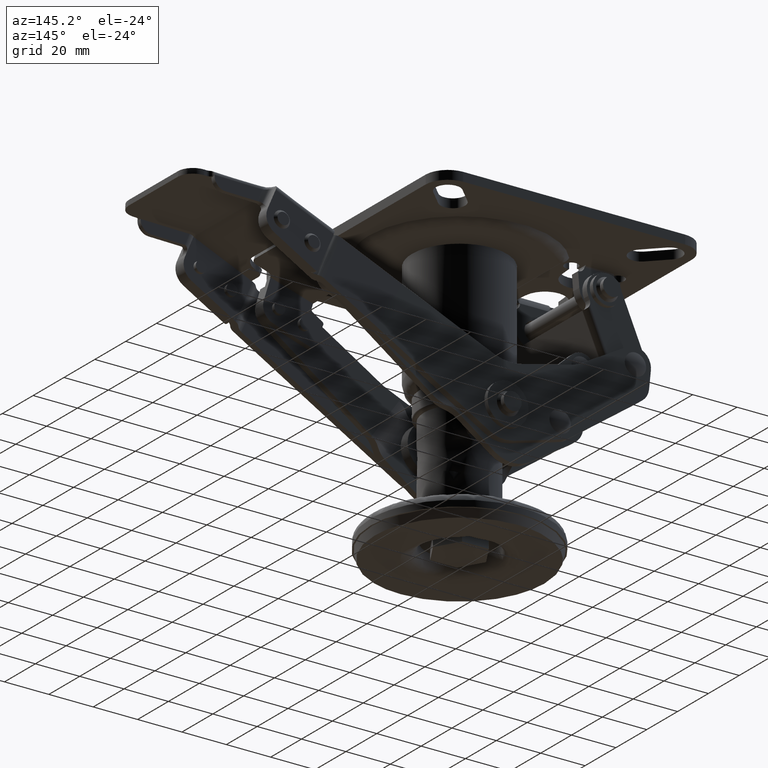
[diagram: clean part render]
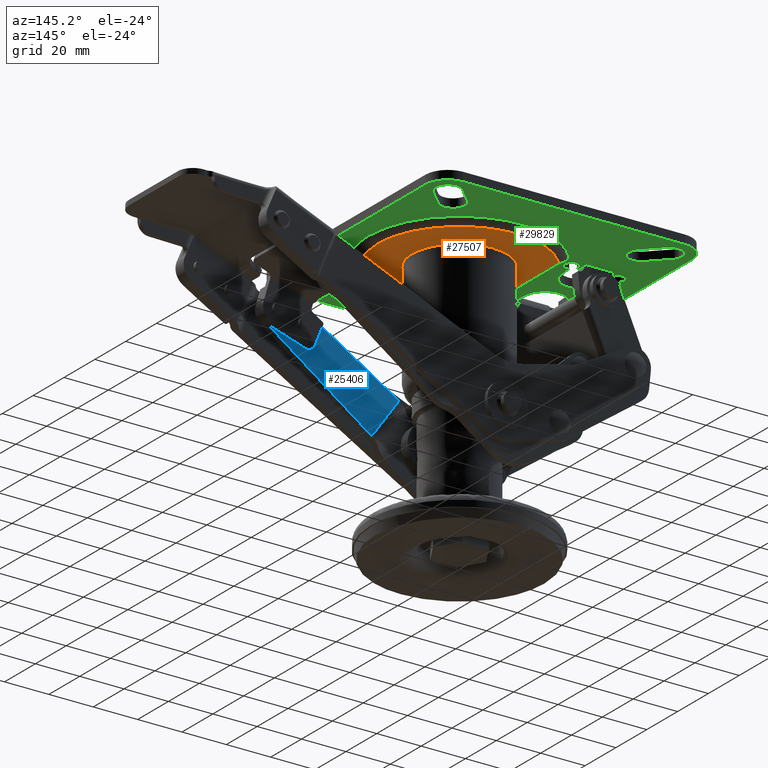
[diagram: same view with three faces highlighted in distinct colors, each labeled with its STEP entity id]
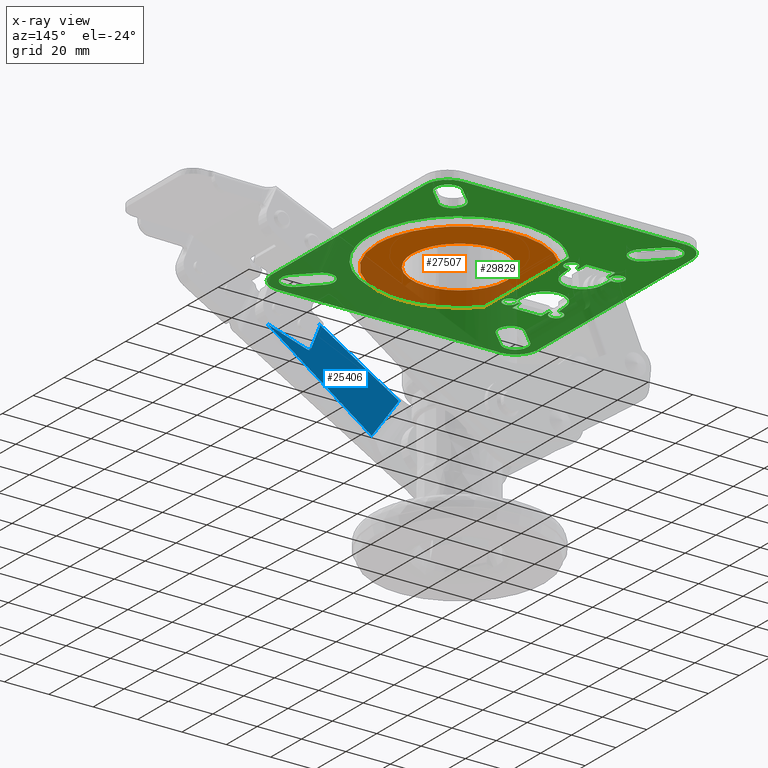
[diagram: x-ray of the same camera — body ghosted, the three highlighted faces saturated]
A machine part, auxiliary view with three faces highlighted in distinct colors.
The next image is the same camera in x-ray (body ghosted, the three faces saturated) — at least one of them is partly hidden behind the body in this view.
Their STEP definitions:

[orange] entity #27507 — the highlighted face is a freeform B-spline surface patch.
#25905=CARTESIAN_POINT('',(-13.786592873296231,16.301913190739729,-6.500013916678331));
#25906=VERTEX_POINT('',#25905);
#25907=CARTESIAN_POINT('',(-21.350000000000001,0.0,-6.500013916666660));
#25908=VERTEX_POINT('',#25907);
#25909=CARTESIAN_POINT('',(-13.786592873296231,16.301913190739729,-6.500013916678331));
#25910=CARTESIAN_POINT('',(-14.856308070925801,15.397452290041580,-6.500013916677689));
#25911=CARTESIAN_POINT('',(-16.884384032374420,13.307317595892579,-6.500013916676164));
#25912=CARTESIAN_POINT('',(-19.153263791618230,9.742295300790023,-6.500013916673649));
#25913=CARTESIAN_POINT('',(-20.889407130229529,5.264792655771989,-6.500013916670408));
#25914=CARTESIAN_POINT('',(-21.350811648911499,1.980588838073343,-6.500013916668128));
#25915=CARTESIAN_POINT('',(-21.350000000000001,0.0,-6.500013916666660));
#25916=B_SPLINE_CURVE_WITH_KNOTS('',3,(#25909,#25910,#25911,#25912,#25913,#25914,#25915),.UNSPECIFIED.,.F.,.U.,(4,1,1,1,4),(0.000000048094904,4.202495671744035,8.694832524884383,12.607483095841980,18.548950290545900),.UNSPECIFIED.);
#25917=EDGE_CURVE('',#25906,#25908,#25916,.T.);
#25986=CARTESIAN_POINT('',(15.486742445372890,14.696370010515761,-6.500013916653133));
#25987=VERTEX_POINT('',#25986);
#25993=CARTESIAN_POINT('',(21.350000000000001,0.0,-6.500013916666660));
#25994=VERTEX_POINT('',#25993);
#25995=CARTESIAN_POINT('',(21.350000000000001,0.0,-6.500013916666660));
#25996=CARTESIAN_POINT('',(21.350067752192459,1.097507571985402,-6.500013916665657));
#25997=CARTESIAN_POINT('',(21.186899002660969,3.208080113858972,-6.500013916663689));
#25998=CARTESIAN_POINT('',(20.487039048814051,6.260457270878121,-6.500013916660910));
#25999=CARTESIAN_POINT('',(19.330812497785310,9.261680216605084,-6.500013916658134));
#26000=CARTESIAN_POINT('',(17.683526554323489,12.125598493834021,-6.500013916655496));
#26001=CARTESIAN_POINT('',(16.242251322226089,13.900302557613390,-6.500013916653868));
#26002=CARTESIAN_POINT('',(15.486742445372890,14.696370010515761,-6.500013916653133));
#26003=B_SPLINE_CURVE_WITH_KNOTS('',3,(#25995,#25996,#25997,#25998,#25999,#26000,#26001,#26002),.UNSPECIFIED.,.F.,.U.,(4,1,1,1,1,4),(0.000000026514597,3.292529367084883,6.331820846562307,9.371032069371601,12.916874771410770,16.209404111972820),.UNSPECIFIED.);
#26004=EDGE_CURVE('',#25994,#25987,#26003,.T.);
#26006=CARTESIAN_POINT('',(0.000001589503607,-21.349999999999941,-6.500013916666660));
#26007=VERTEX_POINT('',#26006);
#26008=CARTESIAN_POINT('',(0.000001589503607,-21.349999999999941,-6.500013916666660));
#26009=CARTESIAN_POINT('',(1.484712561182606,-21.350254901473690,-6.500013916666656));
#26010=CARTESIAN_POINT('',(3.755293230720626,-21.112119326663791,-6.500013916666674));
#26011=CARTESIAN_POINT('',(7.217412117340487,-20.176884233047652,-6.500013916666655));
#26012=CARTESIAN_POINT('',(10.433392986784551,-18.775062866126540,-6.500013916666659));
#26013=CARTESIAN_POINT('',(13.400192910697170,-16.739454864074219,-6.500013916666639));
#26014=CARTESIAN_POINT('',(15.998412270580520,-14.265720166259481,-6.500013916666685));
#26015=CARTESIAN_POINT('',(17.765005977897651,-11.973209310412759,-6.500013916666694));
#26016=CARTESIAN_POINT('',(19.273414458513379,-9.310318067921227,-6.500013916666627));
#26017=CARTESIAN_POINT('',(20.412921995776738,-6.559543669884119,-6.500013916666665));
#26018=CARTESIAN_POINT('',(21.182540578092919,-3.318693420991410,-6.500013916666630));
#26019=CARTESIAN_POINT('',(21.350040547677199,-1.047996694150842,-6.500013916666663));
#26020=CARTESIAN_POINT('',(21.350000000000001,0.0,-6.500013916666660));
#26021=B_SPLINE_CURVE_WITH_KNOTS('',3,(#26008,#26009,#26010,#26011,#26012,#26013,#26014,#26015,#26016,#26017,#26018,#26019,#26020),.UNSPECIFIED.,.F.,.U.,(4,1,1,1,1,1,1,1,1,1,4),(0.000000057160307,4.454085858279608,6.812129577586291,10.742249142382040,14.934375195833031,17.554337254766420,21.484453159943271,23.580482813728100,26.724583869845009,30.392698664487281,33.536711108508221),.UNSPECIFIED.);
#26022=EDGE_CURVE('',#26007,#25994,#26021,.T.);
#26024=CARTESIAN_POINT('',(-21.350000000000001,0.0,-6.500013916666660));
#26025=CARTESIAN_POINT('',(-21.350161895826471,-1.484685279875449,-6.500013916666665));
#26026=CARTESIAN_POINT('',(-21.020925219707259,-4.628734598279888,-6.500013916666653));
#26027=CARTESIAN_POINT('',(-19.700586032722409,-8.544780412771649,-6.500013916666674));
#26028=CARTESIAN_POINT('',(-17.907815882257129,-11.754545980454660,-6.500013916666643));
#26029=CARTESIAN_POINT('',(-16.158012498063151,-14.054394087639301,-6.500013916666644));
#26030=CARTESIAN_POINT('',(-13.992526848537169,-16.219896918350859,-6.500013916666674));
#26031=CARTESIAN_POINT('',(-11.330704503362590,-18.219597623478510,-6.500013916666628));
#26032=CARTESIAN_POINT('',(-8.441094328756654,-19.696355755798582,-6.500013916666722));
#26033=CARTESIAN_POINT('',(-4.628418183362463,-20.981917787177299,-6.500013916666578));
#26034=CARTESIAN_POINT('',(-1.921455168286283,-21.350740197190849,-6.500013916666712));
#26035=CARTESIAN_POINT('',(0.000001589503607,-21.349999999999941,-6.500013916666660));
#26036=B_SPLINE_CURVE_WITH_KNOTS('',3,(#26024,#26025,#26026,#26027,#26028,#26029,#26030,#26031,#26032,#26033,#26034,#26035),.UNSPECIFIED.,.F.,.U.,(4,1,1,1,1,1,1,1,1,4),(0.000000056598360,4.454086095583552,9.432211536990085,12.314281060870810,15.458377209315801,18.078333025958969,21.484454308648150,25.414540854457741,27.772613527549058,33.536712900260440),.UNSPECIFIED.);
#26037=EDGE_CURVE('',#25908,#26007,#26036,.T.);
#26056=CARTESIAN_POINT('',(-0.000001589503753,21.349999999999952,-6.500013916666660));
#26057=VERTEX_POINT('',#26056);
#26058=CARTESIAN_POINT('',(-0.000001589503753,21.349999999999952,-6.500013916666660));
#26059=CARTESIAN_POINT('',(-1.483158680209501,21.350203190624789,-6.500013916667911));
#26060=CARTESIAN_POINT('',(-4.527447096587894,21.031550412562989,-6.500013916670499));
#26061=CARTESIAN_POINT('',(-9.301363414575016,19.459918423620760,-6.500013916674506));
#26062=CARTESIAN_POINT('',(-12.296900404157240,17.562624049874952,-6.500013916677085));
#26063=CARTESIAN_POINT('',(-13.786592873296231,16.301913190739729,-6.500013916678331));
#26064=B_SPLINE_CURVE_WITH_KNOTS('',3,(#26058,#26059,#26060,#26061,#26062,#26063),.UNSPECIFIED.,.F.,.U.,(4,1,1,4),(0.000000029280789,4.449462644540072,9.133098888902641,14.987660739745410),.UNSPECIFIED.);
#26065=EDGE_CURVE('',#26057,#25906,#26064,.T.);
#26067=CARTESIAN_POINT('',(15.486742445372890,14.696370010515761,-6.500013916653133));
#26068=CARTESIAN_POINT('',(14.492938840655970,15.743910908524210,-6.500013916654001));
#26069=CARTESIAN_POINT('',(12.360443362940600,17.576935517576331,-6.500013916655866));
#26070=CARTESIAN_POINT('',(8.965204866303878,19.492082135666049,-6.500013916658816));
#26071=CARTESIAN_POINT('',(4.872973788405502,20.950735331796341,-6.500013916662415));
#26072=CARTESIAN_POINT('',(1.895239689128827,21.350585514585831,-6.500013916664999));
#26073=CARTESIAN_POINT('',(-0.000001589503753,21.349999999999952,-6.500013916666660));
#26074=B_SPLINE_CURVE_WITH_KNOTS('',3,(#26067,#26068,#26069,#26070,#26071,#26072,#26073),.UNSPECIFIED.,.F.,.U.,(4,1,1,1,4),(0.000000016511343,4.331827480215395,8.392920079200415,11.641773098992740,17.327309871356739),.UNSPECIFIED.);
#26075=EDGE_CURVE('',#25987,#26057,#26074,.T.);
#27269=CARTESIAN_POINT('',(-28.000010258343000,-24.186782268452099,-6.500013916666660));
#27270=VERTEX_POINT('',#27269);
#27271=CARTESIAN_POINT('',(-28.000010258343050,24.186782268452099,-6.500013916666660));
#27272=VERTEX_POINT('',#27271);
#27273=CARTESIAN_POINT('',(-28.000010258343000,-24.186782268452099,-6.500013916666660));
#27274=CARTESIAN_POINT('',(-28.000010258343050,24.186782268452099,-6.500013916666660));
#27275=QUASI_UNIFORM_CURVE('',1,(#27273,#27274),.UNSPECIFIED.,.F.,.U.);
#27276=EDGE_CURVE('',#27270,#27272,#27275,.T.);
#27388=CARTESIAN_POINT('',(37.000013661738301,0.0,-6.500013916666660));
#27389=VERTEX_POINT('',#27388);
#27390=CARTESIAN_POINT('',(37.000013661738301,0.0,-6.500013916666660));
#27391=CARTESIAN_POINT('',(37.000103794830380,-1.872428383232798,-6.500013916666659));
#27392=CARTESIAN_POINT('',(36.706238054475293,-5.734313921054016,-6.500013916666665));
#27393=CARTESIAN_POINT('',(35.218910510061583,-12.018278046580321,-6.500013916666664));
#27394=CARTESIAN_POINT('',(32.594686589423468,-17.934073234136751,-6.500013916666664));
#27395=CARTESIAN_POINT('',(29.555775074850409,-22.396491281421149,-6.500013916666635));
#27396=CARTESIAN_POINT('',(26.419878697550679,-26.032711413913631,-6.500013916666671));
#27397=CARTESIAN_POINT('',(22.520221468571080,-29.597482456994200,-6.500013916666800));
#27398=CARTESIAN_POINT('',(17.456548934443710,-32.807414193229079,-6.500013916666383));
#27399=CARTESIAN_POINT('',(12.710592577413101,-34.834223951082627,-6.500013916666983));
#27400=CARTESIAN_POINT('',(8.668750276584335,-36.039524728498783,-6.500013916666433));
#27401=CARTESIAN_POINT('',(4.406031872516758,-36.839242937215488,-6.500013916666514));
#27402=CARTESIAN_POINT('',(0.072136930670529,-37.087961202911231,-6.500013916667340));
#27403=CARTESIAN_POINT('',(-4.605515847720961,-36.800960425331567,-6.500013916665789));
#27404=CARTESIAN_POINT('',(-8.991940323881963,-36.003308051096027,-6.500013916666797));
#27405=CARTESIAN_POINT('',(-13.566103579069200,-34.524260318171820,-6.500013916666834));
#27406=CARTESIAN_POINT('',(-17.604646533759109,-32.642206864004542,-6.500013916666566));
#27407=CARTESIAN_POINT('',(-22.686570905226890,-29.493778232254542,-6.500013916666720));
#27408=CARTESIAN_POINT('',(-26.011575923829358,-26.490045066468650,-6.500013916666680));
#27409=CARTESIAN_POINT('',(-28.000010258343000,-24.186782268452099,-6.500013916666660));
#27410=B_SPLINE_CURVE_WITH_KNOTS('',3,(#27390,#27391,#27392,#27393,#27394,#27395,#27396,#27397,#27398,#27399,#27400,#27401,#27402,#27403,#27404,#27405,#27406,#27407,#27408,#27409),.UNSPECIFIED.,.F.,.U.,(4,1,1,1,1,1,1,1,1,1,1,1,1,1,1,1,1,4),(0.000000075336800,5.617297797988883,11.585810801741159,19.309777272107912,24.927208117952919,27.735892584128191,33.704419696129513,40.726180005645020,45.641315759797678,49.152177274529720,53.365194717158140,58.631537034232103,62.142398791620167,67.408738990523418,71.972876404952373,76.537060874584341,80.750064009064488,89.878317182310525),.UNSPECIFIED.);
#27411=EDGE_CURVE('',#27389,#27270,#27410,.T.);
#27413=CARTESIAN_POINT('',(-28.000010258343050,24.186782268452099,-6.500013916666660));
#27414=CARTESIAN_POINT('',(-26.623142404935411,25.781015146046681,-6.500013916666658));
#27415=CARTESIAN_POINT('',(-24.016397858575399,28.323156935880839,-6.500013916666661));
#27416=CARTESIAN_POINT('',(-19.930207980997391,31.276609928833150,-6.500013916666667));
#27417=CARTESIAN_POINT('',(-16.139219702669330,33.383469812542032,-6.500013916666659));
#27418=CARTESIAN_POINT('',(-11.808616260152309,35.180811060560067,-6.500013916666664));
#27419=CARTESIAN_POINT('',(-6.251771568475615,36.662502292162003,-6.500013916666600));
#27420=CARTESIAN_POINT('',(-0.275314420171204,37.171844397785932,-6.500013916666867));
#27421=CARTESIAN_POINT('',(4.985303953742322,36.744077724806829,-6.500013916666533));
#27422=CARTESIAN_POINT('',(9.353069899583515,35.881824723822653,-6.500013916666725));
#27423=CARTESIAN_POINT('',(13.375684897100831,34.598675343996490,-6.500013916666607));
#27424=CARTESIAN_POINT('',(17.846236423099299,32.536781816450407,-6.500013916666664));
#27425=CARTESIAN_POINT('',(22.505364255337810,29.583608066882789,-6.500013916666663));
#27426=CARTESIAN_POINT('',(26.879308005070900,25.660962004776611,-6.500013916666677));
#27427=CARTESIAN_POINT('',(30.560874352111309,21.093731601723281,-6.500013916666649));
#27428=CARTESIAN_POINT('',(33.356071328523932,16.338116343283311,-6.500013916666677));
#27429=CARTESIAN_POINT('',(35.530373688767831,10.887439239170810,-6.500013916666614));
#27430=CARTESIAN_POINT('',(36.751004423297942,5.383292702836912,-6.500013916666799));
#27431=CARTESIAN_POINT('',(37.000048651445219,1.638373606300112,-6.500013916666464));
#27432=CARTESIAN_POINT('',(37.000013661738301,0.0,-6.500013916666660));
#27433=B_SPLINE_CURVE_WITH_KNOTS('',3,(#27413,#27414,#27415,#27416,#27417,#27418,#27419,#27420,#27421,#27422,#27423,#27424,#27425,#27426,#27427,#27428,#27429,#27430,#27431,#27432),.UNSPECIFIED.,.F.,.U.,(4,1,1,1,1,1,1,1,1,1,1,1,1,1,1,1,1,4),(0.000000075327861,6.319487669714917,10.883639463582190,15.096738471308170,19.309777272098259,24.927208117943518,32.300081362354142,37.215270718951651,40.726180005636920,45.641315759790473,49.854361145039633,55.471700405313143,62.142398791615932,67.408738990520220,73.026151046556890,78.643565691699649,84.963166625956859,89.878317182310539),.UNSPECIFIED.);
#27434=EDGE_CURVE('',#27272,#27389,#27433,.T.);
#27489=CARTESIAN_POINT('',(-31.246760716994729,-40.675004211074949,-6.500013916666660));
#27490=CARTESIAN_POINT('',(40.246766444971982,-40.675004211074949,-6.500013916666660));
#27491=CARTESIAN_POINT('',(-31.246760716994729,40.675128589972289,-6.500013916666660));
#27492=CARTESIAN_POINT('',(40.246766444971982,40.675128589972289,-6.500013916666660));
#27493=B_SPLINE_SURFACE_WITH_KNOTS('',1,1,((#27489,#27491),(#27490,#27492)),.UNSPECIFIED.,.F.,.F.,.U.,(2,2),(2,2),(0.0,71.493527161966711),(0.0,81.350132801047238),.UNSPECIFIED.);
#27494=ORIENTED_EDGE('',*,*,#27434,.T.);
#27495=ORIENTED_EDGE('',*,*,#27411,.T.);
#27496=ORIENTED_EDGE('',*,*,#27276,.T.);
#27497=EDGE_LOOP('',(#27494,#27495,#27496));
#27498=FACE_OUTER_BOUND('',#27497,.T.);
#27499=ORIENTED_EDGE('',*,*,#26037,.T.);
#27500=ORIENTED_EDGE('',*,*,#26022,.T.);
#27501=ORIENTED_EDGE('',*,*,#26004,.T.);
#27502=ORIENTED_EDGE('',*,*,#26075,.T.);
#27503=ORIENTED_EDGE('',*,*,#26065,.T.);
#27504=ORIENTED_EDGE('',*,*,#25917,.T.);
#27505=EDGE_LOOP('',(#27499,#27500,#27501,#27502,#27503,#27504));
#27506=FACE_BOUND('',#27505,.T.);
#27507=ADVANCED_FACE('',(#27498,#27506),#27493,.F.);

[blue] entity #25406 — the highlighted face is a freeform B-spline surface patch.
#23468=CARTESIAN_POINT('',(31.795311076405099,-19.375000000000000,-67.781901845794494));
#23469=VERTEX_POINT('',#23468);
#23480=CARTESIAN_POINT('',(19.487824435764200,-19.375000000000000,-50.461140303671897));
#23481=VERTEX_POINT('',#23480);
#23490=CARTESIAN_POINT('',(31.795311076405099,-19.375000000000000,-67.781901845794494));
#23491=CARTESIAN_POINT('',(19.487824435764200,-19.375000000000000,-50.461140303671897));
#23492=QUASI_UNIFORM_CURVE('',1,(#23490,#23491),.UNSPECIFIED.,.F.,.U.);
#23493=EDGE_CURVE('',#23469,#23481,#23492,.T.);
#24170=CARTESIAN_POINT('',(55.239587410356499,-19.375000000000000,-29.556103522101651));
#24171=VERTEX_POINT('',#24170);
#24177=CARTESIAN_POINT('',(55.641147682760597,-19.375000000000000,-28.337395015141102));
#24178=VERTEX_POINT('',#24177);
#24179=CARTESIAN_POINT('',(55.641147682760597,-19.375000000000000,-28.337395015141102));
#24180=CARTESIAN_POINT('',(55.492978467015853,-19.375000000000021,-28.429015134358430));
#24181=CARTESIAN_POINT('',(55.257121243192287,-19.374999999999989,-28.681157713731839));
#24182=CARTESIAN_POINT('',(55.137594685837868,-19.375000000000021,-29.143770013018010));
#24183=CARTESIAN_POINT('',(55.191263864935628,-19.374999999999979,-29.434768940692951));
#24184=CARTESIAN_POINT('',(55.239587410356499,-19.375000000000000,-29.556103522101651));
#24185=B_SPLINE_CURVE_WITH_KNOTS('',3,(#24179,#24180,#24181,#24182,#24183,#24184),.UNSPECIFIED.,.F.,.U.,(4,1,1,4),(0.000000574989394,0.522462427585074,1.001373715759581,1.393223327708713),.UNSPECIFIED.);
#24186=EDGE_CURVE('',#24178,#24171,#24185,.T.);
#24231=CARTESIAN_POINT('',(60.915686219925398,-19.375000000000000,-40.064851884424300));
#24232=VERTEX_POINT('',#24231);
#24238=CARTESIAN_POINT('',(59.067764431889287,-19.375000000000000,-39.189155169528853));
#24239=VERTEX_POINT('',#24238);
#24240=CARTESIAN_POINT('',(59.067764431889287,-19.375000000000000,-39.189155169528853));
#24241=CARTESIAN_POINT('',(59.128278542325077,-19.375000000000000,-39.341649077624723));
#24242=CARTESIAN_POINT('',(59.312269305037482,-19.375000000000021,-39.646815289070247));
#24243=CARTESIAN_POINT('',(59.739765883563933,-19.375000000000021,-39.990596475848697));
#24244=CARTESIAN_POINT('',(60.309246767372080,-19.374999999999901,-40.167756531633707));
#24245=CARTESIAN_POINT('',(60.714671616996007,-19.375000000000089,-40.128953625376617));
#24246=CARTESIAN_POINT('',(60.915686219925398,-19.375000000000000,-40.064851884424300));
#24247=B_SPLINE_CURVE_WITH_KNOTS('',3,(#24240,#24241,#24242,#24243,#24244,#24245,#24246),.UNSPECIFIED.,.F.,.U.,(4,1,1,1,4),(0.000000271291438,0.492227486362621,1.054789457544846,1.617329604835151,2.250198153758151),.UNSPECIFIED.);
#24248=EDGE_CURVE('',#24239,#24232,#24247,.T.);
#24691=CARTESIAN_POINT('',(59.067764431889287,-19.375000000000000,-39.189155169528853));
#24692=CARTESIAN_POINT('',(55.239587410356499,-19.375000000000000,-29.556103522101651));
#24693=QUASI_UNIFORM_CURVE('',1,(#24691,#24692),.UNSPECIFIED.,.F.,.U.);
#24694=EDGE_CURVE('',#24239,#24171,#24693,.T.);
#24711=CARTESIAN_POINT('',(77.720500728675205,-19.375000000000000,-34.728800851015698));
#24712=VERTEX_POINT('',#24711);
#24713=CARTESIAN_POINT('',(77.720500728675205,-19.375000000000000,-34.728800851015698));
#24714=CARTESIAN_POINT('',(60.915686219925398,-19.375000000000000,-40.064851884424300));
#24715=QUASI_UNIFORM_CURVE('',1,(#24713,#24714),.UNSPECIFIED.,.F.,.U.);
#24716=EDGE_CURVE('',#24712,#24232,#24715,.T.);
#24896=CARTESIAN_POINT('',(79.600105376461102,-19.375000000000000,-33.813599368118147));
#24897=VERTEX_POINT('',#24896);
#24898=CARTESIAN_POINT('',(79.600105376461102,-19.375000000000000,-33.813599368118147));
#24899=CARTESIAN_POINT('',(31.795311076405099,-19.375000000000000,-67.781901845794494));
#24900=QUASI_UNIFORM_CURVE('',1,(#24898,#24899),.UNSPECIFIED.,.F.,.U.);
#24901=EDGE_CURVE('',#24897,#23469,#24900,.T.);
#24938=CARTESIAN_POINT('',(77.720500728675205,-19.375000000000000,-34.728800851015698));
#24939=CARTESIAN_POINT('',(78.390970765877299,-19.374999999999961,-34.527846504779383));
#24940=CARTESIAN_POINT('',(79.028395222363130,-19.375000000000011,-34.217381466957519));
#24941=CARTESIAN_POINT('',(79.600105376461102,-19.375000000000000,-33.813599368118147));
#24942=B_SPLINE_CURVE_WITH_KNOTS('',3,(#24938,#24939,#24940,#24941),.UNSPECIFIED.,.F.,.U.,(4,4),(0.000000013151564,2.099728727234169),.UNSPECIFIED.);
#24943=EDGE_CURVE('',#24712,#24897,#24942,.T.);
#25036=CARTESIAN_POINT('',(19.487824435764200,-19.375000000000000,-50.461140303671897));
#25037=CARTESIAN_POINT('',(55.641147682760597,-19.375000000000000,-28.337395015141102));
#25038=QUASI_UNIFORM_CURVE('',1,(#25036,#25037),.UNSPECIFIED.,.F.,.U.);
#25039=EDGE_CURVE('',#23481,#24178,#25038,.T.);
#25391=CARTESIAN_POINT('',(16.485214990703501,-19.375000000000000,-26.367141886971229));
#25392=CARTESIAN_POINT('',(82.602715358967473,-19.375000000000000,-26.367141886971229));
#25393=CARTESIAN_POINT('',(16.485214990703501,-19.375000000000000,-69.752150036705146));
#25394=CARTESIAN_POINT('',(82.602715358967473,-19.375000000000000,-69.752150036705146));
#25395=B_SPLINE_SURFACE_WITH_KNOTS('',1,1,((#25391,#25393),(#25392,#25394)),.UNSPECIFIED.,.F.,.F.,.U.,(2,2),(2,2),(0.0,66.117500368263975),(0.0,43.385008149733913),.UNSPECIFIED.);
#25396=ORIENTED_EDGE('',*,*,#24901,.T.);
#25397=ORIENTED_EDGE('',*,*,#23493,.T.);
#25398=ORIENTED_EDGE('',*,*,#25039,.T.);
#25399=ORIENTED_EDGE('',*,*,#24186,.T.);
#25400=ORIENTED_EDGE('',*,*,#24694,.F.);
#25401=ORIENTED_EDGE('',*,*,#24248,.T.);
#25402=ORIENTED_EDGE('',*,*,#24716,.F.);
#25403=ORIENTED_EDGE('',*,*,#24943,.T.);
#25404=EDGE_LOOP('',(#25396,#25397,#25398,#25399,#25400,#25401,#25402,#25403));
#25405=FACE_OUTER_BOUND('',#25404,.T.);
#25406=ADVANCED_FACE('',(#25405),#25395,.T.);

[green] entity #29829 — the highlighted face is a freeform B-spline surface patch.
#26359=CARTESIAN_POINT('',(-53.500000000010701,24.0,-4.000044916666670));
#26360=VERTEX_POINT('',#26359);
#26391=CARTESIAN_POINT('',(-40.499999999911850,24.0,-4.000044916666670));
#26392=VERTEX_POINT('',#26391);
#26393=CARTESIAN_POINT('',(-40.499999999911850,24.0,-4.000044916666670));
#26394=CARTESIAN_POINT('',(-53.500000000010701,24.0,-4.000044916666670));
#26395=QUASI_UNIFORM_CURVE('',1,(#26393,#26394),.UNSPECIFIED.,.F.,.U.);
#26396=EDGE_CURVE('',#26392,#26360,#26395,.T.);
#26451=CARTESIAN_POINT('',(-53.500000000010701,-24.0,-4.000044916666670));
#26452=VERTEX_POINT('',#26451);
#26487=CARTESIAN_POINT('',(-40.499999999911850,-24.0,-4.000044916666670));
#26488=VERTEX_POINT('',#26487);
#26517=CARTESIAN_POINT('',(-53.500000000010701,-24.0,-4.000044916666670));
#26518=CARTESIAN_POINT('',(-40.499999999911850,-24.0,-4.000044916666670));
#26519=QUASI_UNIFORM_CURVE('',1,(#26517,#26518),.UNSPECIFIED.,.F.,.U.);
#26520=EDGE_CURVE('',#26452,#26488,#26519,.T.);
#26666=CARTESIAN_POINT('',(-53.500000000002601,19.0,-4.000033735112774));
#26667=VERTEX_POINT('',#26666);
#26668=CARTESIAN_POINT('',(-40.499999999955101,19.000000000024649,-4.000034987462986));
#26669=VERTEX_POINT('',#26668);
#26737=CARTESIAN_POINT('',(-40.499999999911850,24.0,-4.000044916666670));
#26738=CARTESIAN_POINT('',(-40.499999999955101,19.000000000024649,-4.000034987462986));
#26739=QUASI_UNIFORM_CURVE('',1,(#26737,#26738),.UNSPECIFIED.,.F.,.U.);
#26740=EDGE_CURVE('',#26392,#26669,#26739,.T.);
#26762=CARTESIAN_POINT('',(-53.500000000010701,24.0,-4.000044916666670));
#26763=CARTESIAN_POINT('',(-53.500000000002601,19.0,-4.000033735112774));
#26764=QUASI_UNIFORM_CURVE('',1,(#26762,#26763),.UNSPECIFIED.,.F.,.U.);
#26765=EDGE_CURVE('',#26360,#26667,#26764,.T.);
#26809=CARTESIAN_POINT('',(-40.499999999954547,-19.0,-4.000035452083305));
#26810=VERTEX_POINT('',#26809);
#26811=CARTESIAN_POINT('',(-53.500000000002601,-19.0,-4.000033735112780));
#26812=VERTEX_POINT('',#26811);
#27005=CARTESIAN_POINT('',(-40.499999999954547,-19.0,-4.000035452083305));
#27006=CARTESIAN_POINT('',(-40.499999999911850,-24.0,-4.000044916666670));
#27007=QUASI_UNIFORM_CURVE('',1,(#27005,#27006),.UNSPECIFIED.,.F.,.U.);
#27008=EDGE_CURVE('',#26810,#26488,#27007,.T.);
#27050=CARTESIAN_POINT('',(-53.500000000002601,-19.0,-4.000033735112780));
#27051=CARTESIAN_POINT('',(-53.500000000010701,-24.0,-4.000044916666670));
#27052=QUASI_UNIFORM_CURVE('',1,(#27050,#27051),.UNSPECIFIED.,.F.,.U.);
#27053=EDGE_CURVE('',#26812,#26452,#27052,.T.);
#27096=CARTESIAN_POINT('',(-54.035899738200612,19.0,-4.000044916666670));
#27097=VERTEX_POINT('',#27096);
#27121=CARTESIAN_POINT('',(-54.035899738200612,19.0,-4.000044916666670));
#27122=CARTESIAN_POINT('',(-53.500000000002601,19.0,-4.000033735112774));
#27123=QUASI_UNIFORM_CURVE('',1,(#27121,#27122),.UNSPECIFIED.,.F.,.U.);
#27124=EDGE_CURVE('',#27097,#26667,#27123,.T.);
#27127=CARTESIAN_POINT('',(-39.964099825467052,19.0,-4.000044916666610));
#27128=VERTEX_POINT('',#27127);
#27129=CARTESIAN_POINT('',(-40.499999999955101,19.000000000024649,-4.000034987462986));
#27130=CARTESIAN_POINT('',(-39.964099825467052,19.0,-4.000044916666610));
#27131=QUASI_UNIFORM_CURVE('',1,(#27129,#27130),.UNSPECIFIED.,.F.,.U.);
#27132=EDGE_CURVE('',#26669,#27128,#27131,.T.);
#27278=CARTESIAN_POINT('',(-31.708096961622658,-25.529316919978701,-4.000044916666670));
#27279=VERTEX_POINT('',#27278);
#27314=CARTESIAN_POINT('',(-31.708096961622658,25.529316919978701,-4.000044916666610));
#27315=VERTEX_POINT('',#27314);
#27316=CARTESIAN_POINT('',(-31.708096961622658,25.529316919978701,-4.000044916666610));
#27317=CARTESIAN_POINT('',(-31.708096961622658,-25.529316919978701,-4.000044916666670));
#27318=QUASI_UNIFORM_CURVE('',1,(#27316,#27317),.UNSPECIFIED.,.F.,.U.);
#27319=EDGE_CURVE('',#27315,#27279,#27318,.T.);
#27437=CARTESIAN_POINT('',(40.708100365017778,0.000003762363957,-4.000044916666610));
#27438=VERTEX_POINT('',#27437);
#27439=CARTESIAN_POINT('',(40.708100365017778,0.000003762363957,-4.000044916666610));
#27440=CARTESIAN_POINT('',(40.708751384800927,3.134209078638332,-4.000044916666646));
#27441=CARTESIAN_POINT('',(40.094169650907347,8.422820313500687,-4.000044916666536));
#27442=CARTESIAN_POINT('',(37.993459673230369,14.971808974665990,-4.000044916666610));
#27443=CARTESIAN_POINT('',(35.729199353672328,19.688900770519322,-4.000044916666597));
#27444=CARTESIAN_POINT('',(33.121463415372183,23.842878618463129,-4.000044916666501));
#27445=CARTESIAN_POINT('',(30.353149049138601,27.243212719042720,-4.000044916666597));
#27446=CARTESIAN_POINT('',(26.874729688184129,30.695555079565150,-4.000044916666512));
#27447=CARTESIAN_POINT('',(23.278052751517549,33.536584007076549,-4.000044916666520));
#27448=CARTESIAN_POINT('',(18.787086015545150,36.220156032206830,-4.000044916666598));
#27449=CARTESIAN_POINT('',(14.368036747419451,38.197504649092252,-4.000044916666471));
#27450=CARTESIAN_POINT('',(9.990973596886605,39.541967455366347,-4.000044916666566));
#27451=CARTESIAN_POINT('',(4.537385466843762,40.603375240591127,-4.000044916666490));
#27452=CARTESIAN_POINT('',(-1.361069153442268,40.885625840762607,-4.000044916666780));
#27453=CARTESIAN_POINT('',(-7.273448788651677,40.154236856209778,-4.000044916666255));
#27454=CARTESIAN_POINT('',(-12.539468864851020,38.847112401671481,-4.000044916666695));
#27455=CARTESIAN_POINT('',(-17.179187401317819,37.043099938461488,-4.000044916666568));
#27456=CARTESIAN_POINT('',(-22.500220111290371,34.097673125532971,-4.000044916666527));
#27457=CARTESIAN_POINT('',(-27.301653268264442,30.448197831104942,-4.000044916666752));
#27458=CARTESIAN_POINT('',(-30.397817218430241,27.156844494591279,-4.000044916666415));
#27459=CARTESIAN_POINT('',(-31.708096961622658,25.529316919978701,-4.000044916666610));
#27460=B_SPLINE_CURVE_WITH_KNOTS('',3,(#27439,#27440,#27441,#27442,#27443,#27444,#27445,#27446,#27447,#27448,#27449,#27450,#27451,#27452,#27453,#27454,#27455,#27456,#27457,#27458,#27459),.UNSPECIFIED.,.F.,.U.,(4,1,1,1,1,1,1,1,1,1,1,1,1,1,1,1,1,1,4),(0.000000240778576,9.402454329260110,15.866763951416630,20.568043792808162,25.073448397927180,30.558283363727941,33.692463628043441,39.764980386415253,44.270371261708547,49.363425261875740,54.260414301926602,57.982275119463623,66.013660517843107,71.890258139364022,75.808001007979357,82.272268293028503,86.777696358861562,94.025501877404565,100.293783674769600),.UNSPECIFIED.);
#27461=EDGE_CURVE('',#27438,#27315,#27460,.T.);
#27463=CARTESIAN_POINT('',(-31.708096961622658,-25.529316919978701,-4.000044916666670));
#27464=CARTESIAN_POINT('',(-29.743006069098008,-27.970964817829909,-4.000044916666654));
#27465=CARTESIAN_POINT('',(-25.947723931641100,-31.704971246594109,-4.000044916666714));
#27466=CARTESIAN_POINT('',(-19.876156296737609,-35.704874801607723,-4.000044916666615));
#27467=CARTESIAN_POINT('',(-14.760902139844930,-38.056859527115812,-4.000044916666680));
#27468=CARTESIAN_POINT('',(-9.456251524249939,-39.717930766786722,-4.000044916666580));
#27469=CARTESIAN_POINT('',(-3.519278643878632,-40.744229573681459,-4.000044916666750));
#27470=CARTESIAN_POINT('',(2.773888782204036,-40.776413178664832,-4.000044916666587));
#27471=CARTESIAN_POINT('',(8.338913901374699,-39.941604729929999,-4.000044916666720));
#27472=CARTESIAN_POINT('',(13.006369707149981,-38.666170401092970,-4.000044916666480));
#27473=CARTESIAN_POINT('',(17.015914119709080,-37.065463002248997,-4.000044916666679));
#27474=CARTESIAN_POINT('',(21.004391774008489,-34.960056059072969,-4.000044916666637));
#27475=CARTESIAN_POINT('',(24.913868493018679,-32.333630547272243,-4.000044916666671));
#27476=CARTESIAN_POINT('',(29.591989832139689,-28.238618355791179,-4.000044916666471));
#27477=CARTESIAN_POINT('',(33.694142228002420,-23.200098761994589,-4.000044916666637));
#27478=CARTESIAN_POINT('',(36.839113942518701,-17.609319052556849,-4.000044916666625));
#27479=CARTESIAN_POINT('',(38.938768158988523,-12.317965149719390,-4.000044916666611));
#27480=CARTESIAN_POINT('',(40.360053722482952,-6.464146107572883,-4.000044916666612));
#27481=CARTESIAN_POINT('',(40.708272300931696,-2.220020490262909,-4.000044916666610));
#27482=CARTESIAN_POINT('',(40.708100365017778,0.000003762363957,-4.000044916666610));
#27483=B_SPLINE_CURVE_WITH_KNOTS('',3,(#27463,#27464,#27465,#27466,#27467,#27468,#27469,#27470,#27471,#27472,#27473,#27474,#27475,#27476,#27477,#27478,#27479,#27480,#27481,#27482),.UNSPECIFIED.,.F.,.U.,(4,1,1,1,1,1,1,1,1,1,1,1,1,1,1,1,1,4),(0.000000240802635,9.402455034710101,15.866765141861091,21.743368017152349,26.248772850645651,32.517150440657147,39.764983369914717,45.053884631496373,49.363428965499267,54.260418372908077,57.982279469679192,62.879493221635578,68.364300359058774,76.591555607358828,82.272274465691865,87.561250964292924,93.633744054942156,100.293791199519800),.UNSPECIFIED.);
#27484=EDGE_CURVE('',#27279,#27438,#27483,.T.);
#27541=CARTESIAN_POINT('',(-54.530769590121402,19.571431717165201,-4.000044916666610));
#27542=VERTEX_POINT('',#27541);
#27543=CARTESIAN_POINT('',(-54.530769590121402,19.571431717165201,-4.000044916666610));
#27544=CARTESIAN_POINT('',(-54.548069082532933,19.456424864222331,-4.000044916666618));
#27545=CARTESIAN_POINT('',(-54.506414761162993,19.262065227868799,-4.000044916666631));
#27546=CARTESIAN_POINT('',(-54.303377605161408,19.051652834525981,-4.000044916666650));
#27547=CARTESIAN_POINT('',(-54.134193396100329,18.999637382801598,-4.000044916666671));
#27548=CARTESIAN_POINT('',(-54.035899738200612,19.0,-4.000044916666670));
#27549=B_SPLINE_CURVE_WITH_KNOTS('',3,(#27543,#27544,#27545,#27546,#27547,#27548),.UNSPECIFIED.,.F.,.U.,(4,1,1,4),(0.000001045641225,0.348262201631140,0.562492195906342,0.857176917216016),.UNSPECIFIED.);
#27550=EDGE_CURVE('',#27542,#27097,#27549,.T.);
#27614=CARTESIAN_POINT('',(-56.500019619856097,17.171565938663701,-4.000044916666610));
#27615=VERTEX_POINT('',#27614);
#27621=CARTESIAN_POINT('',(-59.819158753499273,21.903024612575379,-4.000044916666610));
#27622=VERTEX_POINT('',#27621);
#27623=CARTESIAN_POINT('',(-59.819158753499273,21.903024612575379,-4.000044916666610));
#27624=CARTESIAN_POINT('',(-60.103086957422803,21.558203955474472,-4.000044916666618));
#27625=CARTESIAN_POINT('',(-60.418266039771957,20.925244935512680,-4.000044916666599));
#27626=CARTESIAN_POINT('',(-60.542109414532227,19.889710366035871,-4.000044916666616));
#27627=CARTESIAN_POINT('',(-60.394698232920362,19.058165216489940,-4.000044916666592));
#27628=CARTESIAN_POINT('',(-60.005905040237593,18.292439827133471,-4.000044916666674));
#27629=CARTESIAN_POINT('',(-59.531627569916957,17.755399241878798,-4.000044916666562));
#27630=CARTESIAN_POINT('',(-58.931419623253170,17.332222091582061,-4.000044916666660));
#27631=CARTESIAN_POINT('',(-58.323174906030353,17.088853806846870,-4.000044916666595));
#27632=CARTESIAN_POINT('',(-57.477742915342603,16.954619757744599,-4.000044916666556));
#27633=CARTESIAN_POINT('',(-56.882627768482600,17.035741285425619,-4.000044916666657));
#27634=CARTESIAN_POINT('',(-56.500019619856097,17.171565938663701,-4.000044916666610));
#27635=B_SPLINE_CURVE_WITH_KNOTS('',3,(#27623,#27624,#27625,#27626,#27627,#27628,#27629,#27630,#27631,#27632,#27633,#27634),.UNSPECIFIED.,.F.,.U.,(4,1,1,1,1,1,1,1,1,4),(0.000001054103017,1.339498952475124,2.070148518632010,3.105242205126936,3.835968160222846,4.627293792669049,5.236209604352375,6.027782646460445,6.575770882598926,7.793481989391297),.UNSPECIFIED.);
#27636=EDGE_CURVE('',#27622,#27615,#27635,.T.);
#27638=CARTESIAN_POINT('',(-54.530769590121402,19.571431717165201,-4.000044916666610));
#27639=CARTESIAN_POINT('',(-54.484164999060511,19.892803476963049,-4.000044916666609));
#27640=CARTESIAN_POINT('',(-54.494700723077869,20.427307654469349,-4.000044916666619));
#27641=CARTESIAN_POINT('',(-54.699671900341762,21.132538645508419,-4.000044916666600));
#27642=CARTESIAN_POINT('',(-54.994981940064697,21.691789103027080,-4.000044916666618));
#27643=CARTESIAN_POINT('',(-55.481046512338203,22.270442145183321,-4.000044916666598));
#27644=CARTESIAN_POINT('',(-56.160885986598743,22.733356286824730,-4.000044916666639));
#27645=CARTESIAN_POINT('',(-57.020488038691887,23.002701291066280,-4.000044916666553));
#27646=CARTESIAN_POINT('',(-57.841550427870857,23.018696511778320,-4.000044916666636));
#27647=CARTESIAN_POINT('',(-58.534137492249627,22.838408492251830,-4.000044916666619));
#27648=CARTESIAN_POINT('',(-59.210105923371962,22.505669341378930,-4.000044916666587));
#27649=CARTESIAN_POINT('',(-59.600495142126860,22.169934756977231,-4.000044916666631));
#27650=CARTESIAN_POINT('',(-59.819158753499273,21.903024612575379,-4.000044916666610));
#27651=B_SPLINE_CURVE_WITH_KNOTS('',3,(#27638,#27639,#27640,#27641,#27642,#27643,#27644,#27645,#27646,#27647,#27648,#27649,#27650),.UNSPECIFIED.,.F.,.U.,(4,1,1,1,1,1,1,1,1,1,4),(0.000001054102646,0.974117656565996,1.583030984166254,2.191927235546080,2.861740074038951,3.835968097090095,4.627293716520033,5.540667633550810,6.271321259721557,6.758473944914572,7.793481861129484),.UNSPECIFIED.);
#27652=EDGE_CURVE('',#27542,#27622,#27651,.T.);
#27669=CARTESIAN_POINT('',(-55.960850015711202,11.411250167853600,-4.000044916666610));
#27670=VERTEX_POINT('',#27669);
#27676=CARTESIAN_POINT('',(-55.960850015711202,11.411250167853600,-4.000044916666610));
#27677=CARTESIAN_POINT('',(-56.500019619856097,17.171565938663701,-4.000044916666610));
#27678=QUASI_UNIFORM_CURVE('',1,(#27676,#27677),.UNSPECIFIED.,.F.,.U.);
#27679=EDGE_CURVE('',#27670,#27615,#27678,.T.);
#27725=CARTESIAN_POINT('',(-38.038711106225698,11.416152674455640,-4.000044916666610));
#27726=VERTEX_POINT('',#27725);
#27732=CARTESIAN_POINT('',(-55.960850015711202,11.411250167853600,-4.000044916666610));
#27733=CARTESIAN_POINT('',(-55.877332045027600,10.514587515174620,-4.000044916666610));
#27734=CARTESIAN_POINT('',(-55.539022842168933,9.155116617108458,-4.000044916666611));
#27735=CARTESIAN_POINT('',(-54.523348976783893,7.176631621464953,-4.000044916666607));
#27736=CARTESIAN_POINT('',(-53.316199823723721,5.724730846357302,-4.000044916666619));
#27737=CARTESIAN_POINT('',(-51.511000263882742,4.363188449004921,-4.000044916666610));
#27738=CARTESIAN_POINT('',(-49.713453823383290,3.582737651644084,-4.000044916666578));
#27739=CARTESIAN_POINT('',(-47.694846465338443,3.218468529935529,-4.000044916666690));
#27740=CARTESIAN_POINT('',(-45.953041618902702,3.249053430846923,-4.000044916666605));
#27741=CARTESIAN_POINT('',(-44.255719701032760,3.628006699011685,-4.000044916666631));
#27742=CARTESIAN_POINT('',(-42.813923814303010,4.235162635249475,-4.000044916666544));
#27743=CARTESIAN_POINT('',(-41.464709412538362,5.092285598840877,-4.000044916666683));
#27744=CARTESIAN_POINT('',(-40.364590695370907,6.106773776951530,-4.000044916666594));
#27745=CARTESIAN_POINT('',(-39.387333821372380,7.369932123439047,-4.000044916666594));
#27746=CARTESIAN_POINT('',(-38.484605091503653,9.057786931674739,-4.000044916666628));
#27747=CARTESIAN_POINT('',(-38.121699409809892,10.519453786669720,-4.000044916666606));
#27748=CARTESIAN_POINT('',(-38.038711106225698,11.416152674455640,-4.000044916666610));
#27749=B_SPLINE_CURVE_WITH_KNOTS('',3,(#27732,#27733,#27734,#27735,#27736,#27737,#27738,#27739,#27740,#27741,#27742,#27743,#27744,#27745,#27746,#27747,#27748),.UNSPECIFIED.,.F.,.U.,(4,1,1,1,1,1,1,1,1,1,1,1,1,1,4),(0.000000700351404,2.701471235005325,4.156143720926409,6.649882948167594,8.312358383069032,10.910058189916720,12.468588044273790,14.442663851763740,16.105078608033910,17.663712655628071,19.118391649377589,20.884788466301750,22.131669486974580,23.898072046897550,26.599512618226520),.UNSPECIFIED.);
#27750=EDGE_CURVE('',#27670,#27726,#27749,.T.);
#27768=CARTESIAN_POINT('',(-37.499998487717001,17.171572340581498,-4.000044916666610));
#27769=VERTEX_POINT('',#27768);
#27775=CARTESIAN_POINT('',(-37.499998487717001,17.171572340581498,-4.000044916666610));
#27776=CARTESIAN_POINT('',(-38.038711106225698,11.416152674455640,-4.000044916666610));
#27777=QUASI_UNIFORM_CURVE('',1,(#27775,#27776),.UNSPECIFIED.,.F.,.U.);
#27778=EDGE_CURVE('',#27769,#27726,#27777,.T.);
#27832=CARTESIAN_POINT('',(-39.469230035881147,19.571429126023052,-4.000044916666610));
#27833=VERTEX_POINT('',#27832);
#27839=CARTESIAN_POINT('',(-34.180835903934870,21.903018101732730,-4.000044916666610));
#27840=VERTEX_POINT('',#27839);
#27841=CARTESIAN_POINT('',(-34.180835903934870,21.903018101732730,-4.000044916666610));
#27842=CARTESIAN_POINT('',(-34.386658642236910,22.154191895082189,-4.000044916666607));
#27843=CARTESIAN_POINT('',(-34.788375224432968,22.506941690867450,-4.000044916666623));
#27844=CARTESIAN_POINT('',(-35.447280496041373,22.831300549242421,-4.000044916666593));
#27845=CARTESIAN_POINT('',(-36.059353440549820,22.990530554577930,-4.000044916666607));
#27846=CARTESIAN_POINT('',(-36.671488915742479,23.015845838427008,-4.000044916666647));
#27847=CARTESIAN_POINT('',(-37.395668360358627,22.897946299245639,-4.000044916666595));
#27848=CARTESIAN_POINT('',(-38.167151194810337,22.557973078969461,-4.000044916666637));
#27849=CARTESIAN_POINT('',(-38.804879395749467,21.975464671479081,-4.000044916666528));
#27850=CARTESIAN_POINT('',(-39.232162785602569,21.304288859569269,-4.000044916666707));
#27851=CARTESIAN_POINT('',(-39.500333236938687,20.530540000319029,-4.000044916666497));
#27852=CARTESIAN_POINT('',(-39.518767143551102,19.912882948274660,-4.000044916666697));
#27853=CARTESIAN_POINT('',(-39.469230035881147,19.571429126023052,-4.000044916666610));
#27854=B_SPLINE_CURVE_WITH_KNOTS('',3,(#27841,#27842,#27843,#27844,#27845,#27846,#27847,#27848,#27849,#27850,#27851,#27852,#27853),.UNSPECIFIED.,.F.,.U.,(4,1,1,1,1,1,1,1,1,1,4),(0.000001054101211,0.974119036322219,1.583033226713337,2.191930340798779,2.861744128410805,3.409669741962101,4.383828055275648,5.357989015091497,5.966899362480449,6.758483519706402,7.793492901929263),.UNSPECIFIED.);
#27855=EDGE_CURVE('',#27840,#27833,#27854,.T.);
#27857=CARTESIAN_POINT('',(-37.499998487717001,17.171572340581498,-4.000044916666610));
#27858=CARTESIAN_POINT('',(-37.193911036480273,17.063126664480070,-4.000044916666607));
#27859=CARTESIAN_POINT('',(-36.667629331730957,16.969104593680338,-4.000044916666608));
#27860=CARTESIAN_POINT('',(-35.874973806558771,17.037700779029581,-4.000044916666611));
#27861=CARTESIAN_POINT('',(-35.194746684944938,17.262928644553899,-4.000044916666615));
#27862=CARTESIAN_POINT('',(-34.456004312269997,17.739769760197209,-4.000044916666622));
#27863=CARTESIAN_POINT('',(-33.862928599601588,18.454173223434090,-4.000044916666563));
#27864=CARTESIAN_POINT('',(-33.503074990890269,19.415731291216080,-4.000044916666705));
#27865=CARTESIAN_POINT('',(-33.475032527229843,20.259806114844679,-4.000044916666546));
#27866=CARTESIAN_POINT('',(-33.680043891710163,21.132835262916519,-4.000044916666677));
#27867=CARTESIAN_POINT('',(-33.948801371449747,21.620789974360559,-4.000044916666531));
#27868=CARTESIAN_POINT('',(-34.180835903934870,21.903018101732730,-4.000044916666610));
#27869=B_SPLINE_CURVE_WITH_KNOTS('',3,(#27857,#27858,#27859,#27860,#27861,#27862,#27863,#27864,#27865,#27866,#27867,#27868),.UNSPECIFIED.,.F.,.U.,(4,1,1,1,1,1,1,1,1,4),(0.000001054108958,0.974119020301114,1.583033200668496,2.374600157017551,3.105246502315305,4.201125427131466,5.114459615116303,6.149564205438369,6.697553387836753,7.793492773665239),.UNSPECIFIED.);
#27870=EDGE_CURVE('',#27769,#27840,#27869,.T.);
#27892=CARTESIAN_POINT('',(-39.964099825467052,19.0,-4.000044916666610));
#27893=CARTESIAN_POINT('',(-39.901602051682033,18.999956883062289,-4.000044916666607));
#27894=CARTESIAN_POINT('',(-39.767673871955267,19.025381317656439,-4.000044916666609));
#27895=CARTESIAN_POINT('',(-39.600618361663052,19.137053766926851,-4.000044916666616));
#27896=CARTESIAN_POINT('',(-39.476160846657343,19.327118056336879,-4.000044916666604));
#27897=CARTESIAN_POINT('',(-39.456244351808081,19.483046219588299,-4.000044916666613));
#27898=CARTESIAN_POINT('',(-39.469230035881147,19.571429126023052,-4.000044916666610));
#27899=B_SPLINE_CURVE_WITH_KNOTS('',3,(#27892,#27893,#27894,#27895,#27896,#27897,#27898),.UNSPECIFIED.,.F.,.U.,(4,1,1,1,4),(0.000001045622655,0.187506778302244,0.401850587758513,0.589298979654727,0.857173861781281),.UNSPECIFIED.);
#27900=EDGE_CURVE('',#27128,#27833,#27899,.T.);
#27919=CARTESIAN_POINT('',(-39.469228663957402,-19.571430811023198,-4.000044916666610));
#27920=VERTEX_POINT('',#27919);
#27921=CARTESIAN_POINT('',(-39.964099842920348,-19.0,-4.000044916666610));
#27922=VERTEX_POINT('',#27921);
#27923=CARTESIAN_POINT('',(-39.469228663957402,-19.571430811023198,-4.000044916666610));
#27924=CARTESIAN_POINT('',(-39.460253587745740,-19.509587524056190,-4.000044916666615));
#27925=CARTESIAN_POINT('',(-39.466290693880168,-19.373385302805900,-4.000044916666608));
#27926=CARTESIAN_POINT('',(-39.552944965906178,-19.192094341156761,-4.000044916666615));
#27927=CARTESIAN_POINT('',(-39.723288949748792,-19.041779658841421,-4.000044916666609));
#27928=CARTESIAN_POINT('',(-39.874766084398949,-18.999753737245559,-4.000044916666616));
#27929=CARTESIAN_POINT('',(-39.964099842920348,-19.0,-4.000044916666610));
#27930=B_SPLINE_CURVE_WITH_KNOTS('',3,(#27923,#27924,#27925,#27926,#27927,#27928,#27929),.UNSPECIFIED.,.F.,.U.,(4,1,1,1,4),(0.000001045628091,0.187507335714969,0.401851782393834,0.589300731491042,0.857176409950511),.UNSPECIFIED.);
#27931=EDGE_CURVE('',#27920,#27922,#27930,.T.);
#27978=CARTESIAN_POINT('',(-54.530769582641398,-19.571431768988049,-4.000044916666610));
#27979=VERTEX_POINT('',#27978);
#27987=CARTESIAN_POINT('',(-54.035899842920301,-19.0,-4.000044916666610));
#27988=VERTEX_POINT('',#27987);
#28010=CARTESIAN_POINT('',(-54.035899842920301,-19.0,-4.000044916666610));
#28011=CARTESIAN_POINT('',(-54.143173422706660,-18.999527378883570,-4.000044916666609));
#28012=CARTESIAN_POINT('',(-54.312104988234260,-19.056637102716468,-4.000044916666613));
#28013=CARTESIAN_POINT('',(-54.508411177444252,-19.271405775354442,-4.000044916666615));
#28014=CARTESIAN_POINT('',(-54.548018402654009,-19.456412943121141,-4.000044916666604));
#28015=CARTESIAN_POINT('',(-54.530769582641398,-19.571431768988049,-4.000044916666610));
#28016=B_SPLINE_CURVE_WITH_KNOTS('',3,(#28010,#28011,#28012,#28013,#28014,#28015),.UNSPECIFIED.,.F.,.U.,(4,1,1,4),(0.000001045642805,0.321454238524496,0.508933163801255,0.857176864837803),.UNSPECIFIED.);
#28017=EDGE_CURVE('',#27988,#27979,#28016,.T.);
#28118=CARTESIAN_POINT('',(-59.819158851463882,-21.903024493188870,-4.000044916666610));
#28119=VERTEX_POINT('',#28118);
#28120=CARTESIAN_POINT('',(-59.819158851463882,-21.903024493188870,-4.000044916666610));
#28121=CARTESIAN_POINT('',(-59.638998306627208,-22.122698957196590,-4.000044916666615));
#28122=CARTESIAN_POINT('',(-59.155204234240458,-22.565885786078539,-4.000044916666609));
#28123=CARTESIAN_POINT('',(-58.362871782478187,-22.916900151208949,-4.000044916666605));
#28124=CARTESIAN_POINT('',(-57.553856230994263,-23.024563176483579,-4.000044916666614));
#28125=CARTESIAN_POINT('',(-56.820869719457498,-22.958122554922699,-4.000044916666604));
#28126=CARTESIAN_POINT('',(-55.974760861792348,-22.645318267215028,-4.000044916666631));
#28127=CARTESIAN_POINT('',(-55.252209705574167,-22.062125592593429,-4.000044916666572));
#28128=CARTESIAN_POINT('',(-54.805589525385457,-21.375630034738219,-4.000044916666600));
#28129=CARTESIAN_POINT('',(-54.508870327331437,-20.572693884536410,-4.000044916666670));
#28130=CARTESIAN_POINT('',(-54.472251834194552,-19.973194967335051,-4.000044916666562));
#28131=CARTESIAN_POINT('',(-54.530769582641398,-19.571431768988049,-4.000044916666610));
#28132=B_SPLINE_CURVE_WITH_KNOTS('',3,(#28120,#28121,#28122,#28123,#28124,#28125,#28126,#28127,#28128,#28129,#28130,#28131),.UNSPECIFIED.,.F.,.U.,(4,1,1,1,1,1,1,1,1,4),(0.000001054117344,0.852350286671403,1.948372334428936,2.557284177100144,3.287950496438891,4.140169697738518,5.236209586766488,6.027782626213089,6.575770860509243,7.793481963210042),.UNSPECIFIED.);
#28133=EDGE_CURVE('',#28119,#27979,#28132,.T.);
#28135=CARTESIAN_POINT('',(-56.500019619856097,-17.171565938663701,-4.000044916666610));
#28136=VERTEX_POINT('',#28135);
#28137=CARTESIAN_POINT('',(-56.500019619856097,-17.171565938663701,-4.000044916666610));
#28138=CARTESIAN_POINT('',(-56.825264641625822,-17.056349366218239,-4.000044916666610));
#28139=CARTESIAN_POINT('',(-57.353340478096982,-16.967509304283610,-4.000044916666611));
#28140=CARTESIAN_POINT('',(-58.185095522457189,-17.048043210024922,-4.000044916666613));
#28141=CARTESIAN_POINT('',(-58.901249513563251,-17.301362806126409,-4.000044916666607));
#28142=CARTESIAN_POINT('',(-59.549034258533133,-17.768089311245109,-4.000044916666599));
#28143=CARTESIAN_POINT('',(-60.090584587425113,-18.406757722615289,-4.000044916666609));
#28144=CARTESIAN_POINT('',(-60.417324953351638,-19.140543522556371,-4.000044916666655));
#28145=CARTESIAN_POINT('',(-60.529676580993090,-19.970373001060128,-4.000044916666576));
#28146=CARTESIAN_POINT('',(-60.427752834502790,-20.906636065018471,-4.000044916666645));
#28147=CARTESIAN_POINT('',(-60.102975447010927,-21.558193693053092,-4.000044916666595));
#28148=CARTESIAN_POINT('',(-59.819158851463882,-21.903024493188870,-4.000044916666610));
#28149=B_SPLINE_CURVE_WITH_KNOTS('',3,(#28137,#28138,#28139,#28140,#28141,#28142,#28143,#28144,#28145,#28146,#28147,#28148),.UNSPECIFIED.,.F.,.U.,(4,1,1,1,1,1,1,1,1,4),(0.000001054104250,1.035069868908963,1.583030978850486,2.496354407493623,3.287950442317034,3.957510955368127,4.992679201283892,5.662440661929557,6.454013688406073,7.793481834948238),.UNSPECIFIED.);
#28150=EDGE_CURVE('',#28136,#28119,#28149,.T.);
#28173=CARTESIAN_POINT('',(-55.960850000000001,-11.411250000000001,-4.000044916666610));
#28174=VERTEX_POINT('',#28173);
#28175=CARTESIAN_POINT('',(-55.960850000000001,-11.411250000000001,-4.000044916666610));
#28176=CARTESIAN_POINT('',(-56.500019619856097,-17.171565938663701,-4.000044916666610));
#28177=QUASI_UNIFORM_CURVE('',1,(#28175,#28176),.UNSPECIFIED.,.F.,.U.);
#28178=EDGE_CURVE('',#28174,#28136,#28177,.T.);
#28229=CARTESIAN_POINT('',(-38.039623877238149,-11.406400723898400,-4.000044916666610));
#28230=VERTEX_POINT('',#28229);
#28231=CARTESIAN_POINT('',(-38.039623877238149,-11.406400723898400,-4.000044916666610));
#28232=CARTESIAN_POINT('',(-38.136315744322900,-10.372220166339430,-4.000044916666612));
#28233=CARTESIAN_POINT('',(-38.637999976459113,-8.542037174977791,-4.000044916666609));
#28234=CARTESIAN_POINT('',(-39.995240719490589,-6.464227866364956,-4.000044916666618));
#28235=CARTESIAN_POINT('',(-41.337495256764790,-5.200000073467689,-4.000044916666584));
#28236=CARTESIAN_POINT('',(-42.636654348520473,-4.333300085741982,-4.000044916666624));
#28237=CARTESIAN_POINT('',(-44.124288613713738,-3.656818106828555,-4.000044916666633));
#28238=CARTESIAN_POINT('',(-45.754057130781597,-3.284260441192060,-4.000044916666605));
#28239=CARTESIAN_POINT('',(-47.488645019607937,-3.214629646908381,-4.000044916666590));
#28240=CARTESIAN_POINT('',(-49.108873856666911,-3.440898623363231,-4.000044916666668));
#28241=CARTESIAN_POINT('',(-50.750725015468440,-4.012408917486114,-4.000044916666524));
#28242=CARTESIAN_POINT('',(-52.471258863709991,-4.996266816488657,-4.000044916666747));
#28243=CARTESIAN_POINT('',(-53.921849321247961,-6.364396672731453,-4.000044916666563));
#28244=CARTESIAN_POINT('',(-54.890431999677062,-7.849858748866231,-4.000044916666613));
#28245=CARTESIAN_POINT('',(-55.610227684558602,-9.427382374116020,-4.000044916666616));
#28246=CARTESIAN_POINT('',(-55.883714017307383,-10.583874111845040,-4.000044916666608));
#28247=CARTESIAN_POINT('',(-55.960850000000001,-11.411250000000001,-4.000044916666610));
#28248=B_SPLINE_CURVE_WITH_KNOTS('',3,(#28231,#28232,#28233,#28234,#28235,#28236,#28237,#28238,#28239,#28240,#28241,#28242,#28243,#28244,#28245,#28246,#28247),.UNSPECIFIED.,.F.,.U.,(4,1,1,1,1,1,1,1,1,1,1,1,1,1,4),(0.000000699162729,3.115897145131392,5.608761286712046,7.374508934842893,8.620934842081674,10.282757624647360,12.256321568593840,13.606416946818610,15.476027835381441,17.137846820545160,18.799735003484351,21.396446516609210,23.058279824430748,24.096950710288390,26.589717696527579),.UNSPECIFIED.);
#28249=EDGE_CURVE('',#28230,#28174,#28248,.T.);
#28272=CARTESIAN_POINT('',(-37.500020910843837,-17.171580268440501,-4.000044916666610));
#28273=VERTEX_POINT('',#28272);
#28274=CARTESIAN_POINT('',(-37.500020910843837,-17.171580268440501,-4.000044916666610));
#28275=CARTESIAN_POINT('',(-38.039623877238149,-11.406400723898400,-4.000044916666610));
#28276=QUASI_UNIFORM_CURVE('',1,(#28274,#28275),.UNSPECIFIED.,.F.,.U.);
#28277=EDGE_CURVE('',#28273,#28230,#28276,.T.);
#28383=CARTESIAN_POINT('',(-34.180827143404933,-21.903008503696089,-4.000044916666610));
#28384=VERTEX_POINT('',#28383);
#28385=CARTESIAN_POINT('',(-34.180827143404933,-21.903008503696089,-4.000044916666610));
#28386=CARTESIAN_POINT('',(-33.961790320662807,-21.636398384980740,-4.000044916666612));
#28387=CARTESIAN_POINT('',(-33.637662128929819,-21.062495199698500,-4.000044916666614));
#28388=CARTESIAN_POINT('',(-33.455404304605707,-20.114803386534071,-4.000044916666607));
#28389=CARTESIAN_POINT('',(-33.563334641689138,-19.176494618365759,-4.000044916666612));
#28390=CARTESIAN_POINT('',(-33.939801918536887,-18.353721391819491,-4.000044916666618));
#28391=CARTESIAN_POINT('',(-34.468416868343738,-17.755405384490700,-4.000044916666604));
#28392=CARTESIAN_POINT('',(-35.135266155205173,-17.285050777307450,-4.000044916666615));
#28393=CARTESIAN_POINT('',(-35.795461764177432,-17.051475614839120,-4.000044916666609));
#28394=CARTESIAN_POINT('',(-36.646140482013841,-16.969254850109220,-4.000044916666610));
#28395=CARTESIAN_POINT('',(-37.155662055490282,-17.049461816162822,-4.000044916666610));
#28396=CARTESIAN_POINT('',(-37.500020910843837,-17.171580268440501,-4.000044916666610));
#28397=B_SPLINE_CURVE_WITH_KNOTS('',3,(#28385,#28386,#28387,#28388,#28389,#28390,#28391,#28392,#28393,#28394,#28395,#28396),.UNSPECIFIED.,.F.,.U.,(4,1,1,1,1,1,1,1,1,4),(0.000001054288620,1.035072879016029,1.948377969707769,2.861748388853685,3.835979242994295,4.627307159585937,5.236224730646062,6.271339480345818,6.697563468847768,7.793504503934595),.UNSPECIFIED.);
#28398=EDGE_CURVE('',#28384,#28273,#28397,.T.);
#28400=CARTESIAN_POINT('',(-39.469228663957402,-19.571430811023198,-4.000044916666610));
#28401=CARTESIAN_POINT('',(-39.533790260244089,-20.013397027744119,-4.000044916666614));
#28402=CARTESIAN_POINT('',(-39.479470776569123,-20.676737574515741,-4.000044916666612));
#28403=CARTESIAN_POINT('',(-39.150002331208029,-21.445570904109371,-4.000044916666610));
#28404=CARTESIAN_POINT('',(-38.806084363476707,-21.951101643422341,-4.000044916666607));
#28405=CARTESIAN_POINT('',(-38.307875093662119,-22.434698557144451,-4.000044916666601));
#28406=CARTESIAN_POINT('',(-37.630579428213288,-22.819616653580709,-4.000044916666611));
#28407=CARTESIAN_POINT('',(-36.915201252112382,-22.996662908286240,-4.000044916666616));
#28408=CARTESIAN_POINT('',(-36.242758030634988,-23.009724781883680,-4.000044916666610));
#28409=CARTESIAN_POINT('',(-35.499654551753864,-22.872137017046050,-4.000044916666567));
#28410=CARTESIAN_POINT('',(-34.764242600034187,-22.500691236499499,-4.000044916666729));
#28411=CARTESIAN_POINT('',(-34.335275925688201,-22.091260662467910,-4.000044916666523));
#28412=CARTESIAN_POINT('',(-34.180827143404933,-21.903008503696089,-4.000044916666610));
#28413=B_SPLINE_CURVE_WITH_KNOTS('',3,(#28400,#28401,#28402,#28403,#28404,#28405,#28406,#28407,#28408,#28409,#28410,#28411,#28412),.UNSPECIFIED.,.F.,.U.,(4,1,1,1,1,1,1,1,1,1,4),(0.000001054182101,1.339502720459513,1.948377821317359,2.496361478625275,3.166201505643365,4.018430025081614,4.810009170244532,5.357996583324018,6.027799601239800,7.062949494961869,7.793503910584291),.UNSPECIFIED.);
#28414=EDGE_CURVE('',#27920,#28384,#28413,.T.);
#28433=CARTESIAN_POINT('',(36.379295205741897,-38.601145205742050,-4.000044916666610));
#28434=VERTEX_POINT('',#28433);
#28440=CARTESIAN_POINT('',(43.898854794280659,-46.120704794280897,-4.000044916666610));
#28441=VERTEX_POINT('',#28440);
#28442=CARTESIAN_POINT('',(36.379295205741897,-38.601145205742050,-4.000044916666610));
#28443=CARTESIAN_POINT('',(43.898854794280659,-46.120704794280897,-4.000044916666610));
#28444=QUASI_UNIFORM_CURVE('',1,(#28442,#28443),.UNSPECIFIED.,.F.,.U.);
#28445=EDGE_CURVE('',#28434,#28441,#28444,.T.);
#28469=CARTESIAN_POINT('',(-56.120709996763999,53.898859970657199,-4.000044916666610));
#28470=VERTEX_POINT('',#28469);
#28476=CARTESIAN_POINT('',(-48.606693720537400,46.384863731753903,-4.000044916666610));
#28477=VERTEX_POINT('',#28476);
#28478=CARTESIAN_POINT('',(-48.606693720537400,46.384863731753903,-4.000044916666610));
#28479=CARTESIAN_POINT('',(-56.120709996763999,53.898859970657199,-4.000044916666610));
#28480=QUASI_UNIFORM_CURVE('',1,(#28478,#28479),.UNSPECIFIED.,.F.,.U.);
#28481=EDGE_CURVE('',#28477,#28470,#28480,.T.);
#28540=CARTESIAN_POINT('',(36.110899926999501,53.889099926999499,-4.000044916666610));
#28541=VERTEX_POINT('',#28540);
#28547=CARTESIAN_POINT('',(43.886971232424152,53.891214913369062,-4.000044916666610));
#28548=VERTEX_POINT('',#28547);
#28549=CARTESIAN_POINT('',(43.886971232424152,53.891214913369062,-4.000044916666610));
#28550=CARTESIAN_POINT('',(43.632416998859362,54.145545508232523,-4.000044916666608));
#28551=CARTESIAN_POINT('',(43.038185055597353,54.632687207923659,-4.000044916666608));
#28552=CARTESIAN_POINT('',(42.114053232718263,55.111653961094873,-4.000044916666619));
#28553=CARTESIAN_POINT('',(41.121202808879907,55.412345103174722,-4.000044916666609));
#28554=CARTESIAN_POINT('',(39.909946498924690,55.561696801521023,-4.000044916666587));
#28555=CARTESIAN_POINT('',(38.600997054447490,55.383563016316721,-4.000044916666657));
#28556=CARTESIAN_POINT('',(37.223047783750459,54.812382510450277,-4.000044916666560));
#28557=CARTESIAN_POINT('',(36.492441250530369,54.270938438602350,-4.000044916666630));
#28558=CARTESIAN_POINT('',(36.110899926999501,53.889099926999499,-4.000044916666610));
#28559=B_SPLINE_CURVE_WITH_KNOTS('',3,(#28549,#28550,#28551,#28552,#28553,#28554,#28555,#28556,#28557,#28558),.UNSPECIFIED.,.F.,.U.,(4,1,1,1,1,1,1,4),(0.000000081165496,1.079539599692747,2.294108272680384,3.103806273003520,4.183363100029069,5.937655036900166,7.017273251927431,8.636618829330173),.UNSPECIFIED.);
#28560=EDGE_CURVE('',#28548,#28541,#28559,.T.);
#28562=CARTESIAN_POINT('',(43.893311437656649,46.115141437656803,-4.000044916666610));
#28563=VERTEX_POINT('',#28562);
#28564=CARTESIAN_POINT('',(43.893311437656649,46.115141437656803,-4.000044916666610));
#28565=CARTESIAN_POINT('',(44.274734651310347,46.497099011515957,-4.000044916666609));
#28566=CARTESIAN_POINT('',(44.842469679493867,47.264837186394281,-4.000044916666611));
#28567=CARTESIAN_POINT('',(45.328583547105723,48.483940618270069,-4.000044916666607));
#28568=CARTESIAN_POINT('',(45.543948643191243,49.731060296432830,-4.000044916666608));
#28569=CARTESIAN_POINT('',(45.467792872621800,50.954221720453539,-4.000044916666618));
#28570=CARTESIAN_POINT('',(45.007602215884440,52.467884431261702,-4.000044916666594));
#28571=CARTESIAN_POINT('',(44.396764504541871,53.382995293429524,-4.000044916666619));
#28572=CARTESIAN_POINT('',(43.886971232424152,53.891214913369062,-4.000044916666610));
#28573=B_SPLINE_CURVE_WITH_KNOTS('',3,(#28564,#28565,#28566,#28567,#28568,#28569,#28570,#28571,#28572),.UNSPECIFIED.,.F.,.U.,(4,1,1,1,1,1,4),(0.000000081166991,1.619346049148543,2.833912915809830,3.913476567494186,5.397864263453446,6.477468881876646,8.636625145946995),.UNSPECIFIED.);
#28574=EDGE_CURVE('',#28563,#28548,#28573,.T.);
#28598=CARTESIAN_POINT('',(-48.610890073000597,-46.389070073000603,-4.000044916666610));
#28599=VERTEX_POINT('',#28598);
#28605=CARTESIAN_POINT('',(-56.110900000000001,-53.889080000000000,-4.000044916666610));
#28606=VERTEX_POINT('',#28605);
#28607=CARTESIAN_POINT('',(-48.610890073000597,-46.389070073000603,-4.000044916666610));
#28608=CARTESIAN_POINT('',(-56.110900000000001,-53.889080000000000,-4.000044916666610));
#28609=QUASI_UNIFORM_CURVE('',1,(#28607,#28608),.UNSPECIFIED.,.F.,.U.);
#28610=EDGE_CURVE('',#28599,#28606,#28609,.T.);
#28634=CARTESIAN_POINT('',(50.0,-50.0,-4.000044916666610));
#28635=VERTEX_POINT('',#28634);
#28641=CARTESIAN_POINT('',(50.0,50.0,-4.000044916666610));
#28642=VERTEX_POINT('',#28641);
#28643=CARTESIAN_POINT('',(50.0,-50.0,-4.000044916666610));
#28644=CARTESIAN_POINT('',(50.0,50.0,-4.000044916666610));
#28645=QUASI_UNIFORM_CURVE('',1,(#28643,#28644),.UNSPECIFIED.,.F.,.U.);
#28646=EDGE_CURVE('',#28635,#28642,#28645,.T.);
#28701=CARTESIAN_POINT('',(-63.889080000000000,46.110900000000001,-4.000044916666610));
#28702=VERTEX_POINT('',#28701);
#28708=CARTESIAN_POINT('',(-63.893976635839209,53.884174512870018,-4.000044916666610));
#28709=VERTEX_POINT('',#28708);
#28710=CARTESIAN_POINT('',(-63.893976635839209,53.884174512870018,-4.000044916666610));
#28711=CARTESIAN_POINT('',(-64.402645793087657,53.375341721987219,-4.000044916666610));
#28712=CARTESIAN_POINT('',(-65.113258057267828,52.306869290476698,-4.000044916666614));
#28713=CARTESIAN_POINT('',(-65.509380087812474,50.719400455273622,-4.000044916666615));
#28714=CARTESIAN_POINT('',(-65.508439236783559,49.273629215738232,-4.000044916666611));
#28715=CARTESIAN_POINT('',(-65.110386491359435,47.686678647271037,-4.000044916666605));
#28716=CARTESIAN_POINT('',(-64.398359587526940,46.619101242598560,-4.000044916666632));
#28717=CARTESIAN_POINT('',(-63.889080000000000,46.110900000000001,-4.000044916666610));
#28718=B_SPLINE_CURVE_WITH_KNOTS('',3,(#28710,#28711,#28712,#28713,#28714,#28715,#28716,#28717),.UNSPECIFIED.,.F.,.U.,(4,1,1,1,1,4),(0.000000081015722,2.158168899748347,3.776800687382766,4.855861746807589,6.474502411594476,8.632669847919502),.UNSPECIFIED.);
#28719=EDGE_CURVE('',#28709,#28702,#28718,.T.);
#28721=CARTESIAN_POINT('',(-56.120709996763999,53.898859970657199,-4.000044916666610));
#28722=CARTESIAN_POINT('',(-56.630174427300453,54.406908495267942,-4.000044916666620));
#28723=CARTESIAN_POINT('',(-57.699571241411043,55.116106906744108,-4.000044916666597));
#28724=CARTESIAN_POINT('',(-59.287511309564941,55.510339993748943,-4.000044916666616));
#28725=CARTESIAN_POINT('',(-60.552531284715350,55.507723347294487,-4.000044916666612));
#28726=CARTESIAN_POINT('',(-61.526976461329468,55.312121782837352,-4.000044916666609));
#28727=CARTESIAN_POINT('',(-62.704047433995001,54.856031702948187,-4.000044916666610));
#28728=CARTESIAN_POINT('',(-63.449744035627582,54.330226354145509,-4.000044916666603));
#28729=CARTESIAN_POINT('',(-63.893976635839209,53.884174512870018,-4.000044916666610));
#28730=B_SPLINE_CURVE_WITH_KNOTS('',3,(#28721,#28722,#28723,#28724,#28725,#28726,#28727,#28728,#28729),.UNSPECIFIED.,.F.,.U.,(4,1,1,1,1,1,4),(0.000000081018682,2.158170474311919,3.776803442854753,4.855865289554760,5.934944473723484,6.744289510858890,8.632676146154982),.UNSPECIFIED.);
#28731=EDGE_CURVE('',#28470,#28709,#28730,.T.);
#28749=CARTESIAN_POINT('',(-56.389080000000000,38.610899999999987,-4.000044916666610));
#28750=VERTEX_POINT('',#28749);
#28756=CARTESIAN_POINT('',(-63.889080000000000,46.110900000000001,-4.000044916666610));
#28757=CARTESIAN_POINT('',(-56.389080000000000,38.610899999999987,-4.000044916666610));
#28758=QUASI_UNIFORM_CURVE('',1,(#28756,#28757),.UNSPECIFIED.,.F.,.U.);
#28759=EDGE_CURVE('',#28702,#28750,#28758,.T.);
#28811=CARTESIAN_POINT('',(-48.613006687264779,38.608797164672339,-4.000044916666610));
#28812=VERTEX_POINT('',#28811);
#28813=CARTESIAN_POINT('',(-48.613006687264779,38.608797164672339,-4.000044916666610));
#28814=CARTESIAN_POINT('',(-48.230963744640881,38.990132671242733,-4.000044916666613));
#28815=CARTESIAN_POINT('',(-47.661976640133261,39.756947610262152,-4.000044916666611));
#28816=CARTESIAN_POINT('',(-47.173917424004230,40.975255714776701,-4.000044916666607));
#28817=CARTESIAN_POINT('',(-46.940816742233963,42.311061998400319,-4.000044916666615));
#28818=CARTESIAN_POINT('',(-47.068435601003522,43.809004290236402,-4.000044916666602));
#28819=CARTESIAN_POINT('',(-47.676339077934863,45.279796558204367,-4.000044916666631));
#28820=CARTESIAN_POINT('',(-48.288905168425238,46.066529583090087,-4.000044916666592));
#28821=CARTESIAN_POINT('',(-48.606693720537400,46.384863731753903,-4.000044916666610));
#28822=B_SPLINE_CURVE_WITH_KNOTS('',3,(#28813,#28814,#28815,#28816,#28817,#28818,#28819,#28820,#28821),.UNSPECIFIED.,.F.,.U.,(4,1,1,1,1,1,4),(0.000000081164428,1.619344780792295,2.833910696199417,3.913473502302284,5.667755021324522,7.287172595634333,8.636618381416243),.UNSPECIFIED.);
#28823=EDGE_CURVE('',#28812,#28477,#28822,.T.);
#28825=CARTESIAN_POINT('',(-56.389080000000000,38.610899999999987,-4.000044916666610));
#28826=CARTESIAN_POINT('',(-56.007541860522892,38.229047848691017,-4.000044916666608));
#28827=CARTESIAN_POINT('',(-55.313460878235077,37.714688184305352,-4.000044916666607));
#28828=CARTESIAN_POINT('',(-54.193089426147402,37.234314310143453,-4.000044916666621));
#28829=CARTESIAN_POINT('',(-53.222934203374230,37.016264564166427,-4.000044916666595));
#28830=CARTESIAN_POINT('',(-52.185261852662457,36.977759339812657,-4.000044916666624));
#28831=CARTESIAN_POINT('',(-51.246355842607642,37.116777560366948,-4.000044916666601));
#28832=CARTESIAN_POINT('',(-49.961241210587851,37.540521358778022,-4.000044916666615));
#28833=CARTESIAN_POINT('',(-49.121741844055009,38.099500444842967,-4.000044916666604));
#28834=CARTESIAN_POINT('',(-48.613006687264779,38.608797164672339,-4.000044916666610));
#28835=B_SPLINE_CURVE_WITH_KNOTS('',3,(#28825,#28826,#28827,#28828,#28829,#28830,#28831,#28832,#28833,#28834),.UNSPECIFIED.,.F.,.U.,(4,1,1,1,1,1,1,4),(0.000000081168208,1.619345965115394,2.564013015441614,3.643588629342734,4.588200363601787,5.667759166561954,6.477468545951448,8.636624698046104),.UNSPECIFIED.);
#28836=EDGE_CURVE('',#28750,#28812,#28835,.T.);
#28854=CARTESIAN_POINT('',(28.610900000000001,46.389099999999999,-4.000044916666610));
#28855=VERTEX_POINT('',#28854);
#28861=CARTESIAN_POINT('',(36.110899926999501,53.889099926999499,-4.000044916666610));
#28862=CARTESIAN_POINT('',(28.610900000000001,46.389099999999999,-4.000044916666610));
#28863=QUASI_UNIFORM_CURVE('',1,(#28861,#28862),.UNSPECIFIED.,.F.,.U.);
#28864=EDGE_CURVE('',#28541,#28855,#28863,.T.);
#28919=CARTESIAN_POINT('',(36.393311437656649,38.615141437656753,-4.000044916666610));
#28920=VERTEX_POINT('',#28919);
#28926=CARTESIAN_POINT('',(28.613013772018459,38.608800079697453,-4.000044916666610));
#28927=VERTEX_POINT('',#28926);
#28928=CARTESIAN_POINT('',(28.613013772018459,38.608800079697453,-4.000044916666610));
#28929=CARTESIAN_POINT('',(28.867744031800960,38.354291948838451,-4.000044916666611));
#28930=CARTESIAN_POINT('',(29.462426206814730,37.866864021949020,-4.000044916666608));
#28931=CARTESIAN_POINT('',(30.548135971314640,37.304347435888239,-4.000044916666616));
#28932=CARTESIAN_POINT('',(31.692190497090522,37.018702404800479,-4.000044916666613));
#28933=CARTESIAN_POINT('',(32.820934638979580,36.978106231790171,-4.000044916666608));
#28934=CARTESIAN_POINT('',(33.849819480250872,37.131636184244407,-4.000044916666615));
#28935=CARTESIAN_POINT('',(35.127087485289763,37.589792388799118,-4.000044916666604));
#28936=CARTESIAN_POINT('',(35.948434782831939,38.168740153707873,-4.000044916666615));
#28937=CARTESIAN_POINT('',(36.393311437656649,38.615141437656753,-4.000044916666610));
#28938=B_SPLINE_CURVE_WITH_KNOTS('',3,(#28928,#28929,#28930,#28931,#28932,#28933,#28934,#28935,#28936,#28937),.UNSPECIFIED.,.F.,.U.,(4,1,1,1,1,1,1,4),(0.000000081384227,1.080287110198420,2.295696902562693,3.646109254708980,4.591374481635810,5.671680083145986,6.752042169909312,8.642599502586645),.UNSPECIFIED.);
#28939=EDGE_CURVE('',#28927,#28920,#28938,.T.);
#28941=CARTESIAN_POINT('',(28.610900000000001,46.389099999999999,-4.000044916666610));
#28942=CARTESIAN_POINT('',(28.356253495444790,46.134511633946452,-4.000044916666611));
#28943=CARTESIAN_POINT('',(27.868512395685219,45.540079647620857,-4.000044916666609));
#28944=CARTESIAN_POINT('',(27.305370593508009,44.454701786993077,-4.000044916666610));
#28945=CARTESIAN_POINT('',(27.019174651944081,43.310787974984841,-4.000044916666613));
#28946=CARTESIAN_POINT('',(26.971138612673819,42.001424438331163,-4.000044916666599));
#28947=CARTESIAN_POINT('',(27.211223180874342,40.796606350353308,-4.000044916666644));
#28948=CARTESIAN_POINT('',(27.792069839662030,39.570251679884919,-4.000044916666579));
#28949=CARTESIAN_POINT('',(28.294486732795011,38.926840796374783,-4.000044916666615));
#28950=CARTESIAN_POINT('',(28.613013772018459,38.608800079697453,-4.000044916666610));
#28951=B_SPLINE_CURVE_WITH_KNOTS('',3,(#28941,#28942,#28943,#28944,#28945,#28946,#28947,#28948,#28949,#28950),.UNSPECIFIED.,.F.,.U.,(4,1,1,1,1,1,1,4),(0.000000081381907,1.080287102686774,2.295696886601223,3.646109229360116,4.591374449715685,6.211857085690458,7.292219164944739,8.642599442503673),.UNSPECIFIED.);
#28952=EDGE_CURVE('',#28855,#28927,#28951,.T.);
#28969=CARTESIAN_POINT('',(36.393311437656649,38.615141437656753,-4.000044916666610));
#28970=CARTESIAN_POINT('',(43.893311437656649,46.115141437656803,-4.000044916666610));
#28971=QUASI_UNIFORM_CURVE('',1,(#28969,#28970),.UNSPECIFIED.,.F.,.U.);
#28972=EDGE_CURVE('',#28920,#28563,#28971,.T.);
#29024=CARTESIAN_POINT('',(-56.389069999999997,-38.610890000000012,-4.000044916666610));
#29025=VERTEX_POINT('',#29024);
#29031=CARTESIAN_POINT('',(-48.610889942321123,-38.610890057678922,-4.000044916666610));
#29032=VERTEX_POINT('',#29031);
#29033=CARTESIAN_POINT('',(-48.610889942321123,-38.610890057678922,-4.000044916666610));
#29034=CARTESIAN_POINT('',(-49.056041116594002,-38.165049898533830,-4.000044916666612));
#29035=CARTESIAN_POINT('',(-49.915144630705321,-37.561028572510551,-4.000044916666609));
#29036=CARTESIAN_POINT('',(-51.242280147860008,-37.104522049131987,-4.000044916666610));
#29037=CARTESIAN_POINT('',(-52.409008179442758,-36.960639163309267,-4.000044916666618));
#29038=CARTESIAN_POINT('',(-53.536592613988141,-37.057762951481770,-4.000044916666594));
#29039=CARTESIAN_POINT('',(-54.964601291958843,-37.490645493835103,-4.000044916666627));
#29040=CARTESIAN_POINT('',(-55.880389337691007,-38.101220537724302,-4.000044916666609));
#29041=CARTESIAN_POINT('',(-56.389069999999997,-38.610890000000012,-4.000044916666610));
#29042=B_SPLINE_CURVE_WITH_KNOTS('',3,(#29033,#29034,#29035,#29036,#29037,#29038,#29039,#29040,#29041),.UNSPECIFIED.,.F.,.U.,(4,1,1,1,1,1,4),(0.000000081211907,1.889902960244695,3.104878599359650,4.184808381732843,5.399725178691532,6.479702006630559,8.639602645576172),.UNSPECIFIED.);
#29043=EDGE_CURVE('',#29032,#29025,#29042,.T.);
#29045=CARTESIAN_POINT('',(-48.610890073000597,-46.389070073000603,-4.000044916666610));
#29046=CARTESIAN_POINT('',(-48.228942759931833,-46.007397971177923,-4.000044916666612));
#29047=CARTESIAN_POINT('',(-47.551629234499039,-45.093870195171547,-4.000044916666610));
#29048=CARTESIAN_POINT('',(-47.047542064353379,-43.628777122670932,-4.000044916666605));
#29049=CARTESIAN_POINT('',(-46.970134589771867,-42.363464547796568,-4.000044916666615));
#29050=CARTESIAN_POINT('',(-47.097203885992677,-41.333580279223973,-4.000044916666619));
#29051=CARTESIAN_POINT('',(-47.490587013935787,-40.035338327226981,-4.000044916666564));
#29052=CARTESIAN_POINT('',(-48.101239495155511,-39.119576154319716,-4.000044916666655));
#29053=CARTESIAN_POINT('',(-48.610889942321123,-38.610890057678922,-4.000044916666610));
#29054=B_SPLINE_CURVE_WITH_KNOTS('',3,(#29045,#29046,#29047,#29048,#29049,#29050,#29051,#29052,#29053),.UNSPECIFIED.,.F.,.U.,(4,1,1,1,1,1,4),(0.000000081267812,1.619904301614379,3.374863233997240,4.589782381815368,5.399725157624696,6.479701981300298,8.639602611813380),.UNSPECIFIED.);
#29055=EDGE_CURVE('',#28599,#29032,#29054,.T.);
#29073=CARTESIAN_POINT('',(-63.889079757885007,-46.110899757884887,-4.000044916666610));
#29074=VERTEX_POINT('',#29073);
#29080=CARTESIAN_POINT('',(-63.889079757885007,-46.110899757884887,-4.000044916666610));
#29081=CARTESIAN_POINT('',(-56.389069999999997,-38.610890000000012,-4.000044916666610));
#29082=QUASI_UNIFORM_CURVE('',1,(#29080,#29081),.UNSPECIFIED.,.F.,.U.);
#29083=EDGE_CURVE('',#29074,#29025,#29082,.T.);
#29134=CARTESIAN_POINT('',(-63.889080142236139,-53.889079857763889,-4.000044916666610));
#29135=VERTEX_POINT('',#29134);
#29136=CARTESIAN_POINT('',(-63.889080142236139,-53.889079857763889,-4.000044916666610));
#29137=CARTESIAN_POINT('',(-63.507405758513009,-54.271049440826829,-4.000044916666613));
#29138=CARTESIAN_POINT('',(-62.739985177031947,-54.839780365857379,-4.000044916666607));
#29139=CARTESIAN_POINT('',(-61.520917136723220,-55.327183953388761,-4.000044916666618));
#29140=CARTESIAN_POINT('',(-60.184467806557372,-55.559362539975432,-4.000044916666612));
#29141=CARTESIAN_POINT('',(-58.686113564305963,-55.430421847389177,-4.000044916666606));
#29142=CARTESIAN_POINT('',(-57.215355795574013,-54.820945746174807,-4.000044916666612));
#29143=CARTESIAN_POINT('',(-56.429014412374478,-54.207302038553813,-4.000044916666591));
#29144=CARTESIAN_POINT('',(-56.110900000000001,-53.889080000000000,-4.000044916666610));
#29145=B_SPLINE_CURVE_WITH_KNOTS('',3,(#29136,#29137,#29138,#29139,#29140,#29141,#29142,#29143,#29144),.UNSPECIFIED.,.F.,.U.,(4,1,1,1,1,1,4),(0.000000081134200,1.619904320470422,2.834889949022137,3.914825772968516,5.669713464437082,7.289690649833394,8.639602712976270),.UNSPECIFIED.);
#29146=EDGE_CURVE('',#29135,#28606,#29145,.T.);
#29148=CARTESIAN_POINT('',(-63.889079757885007,-46.110899757884887,-4.000044916666610));
#29149=CARTESIAN_POINT('',(-64.143622787183219,-46.365410162240899,-4.000044916666610));
#29150=CARTESIAN_POINT('',(-64.688691858160169,-47.029464932376563,-4.000044916666612));
#29151=CARTESIAN_POINT('',(-65.226430067896700,-48.131201720765141,-4.000044916666609));
#29152=CARTESIAN_POINT('',(-65.543582004512771,-49.543009653163800,-4.000044916666617));
#29153=CARTESIAN_POINT('',(-65.494918295212287,-50.863529297816797,-4.000044916666612));
#29154=CARTESIAN_POINT('',(-65.009242587681683,-52.464561074596041,-4.000044916666597));
#29155=CARTESIAN_POINT('',(-64.398822088332992,-53.380457493754129,-4.000044916666615));
#29156=CARTESIAN_POINT('',(-63.889080142236139,-53.889079857763889,-4.000044916666610));
#29157=B_SPLINE_CURVE_WITH_KNOTS('',3,(#29148,#29149,#29150,#29151,#29152,#29153,#29154,#29155,#29156),.UNSPECIFIED.,.F.,.U.,(4,1,1,1,1,1,4),(0.000000081166396,1.079912544031444,2.564897118832763,3.644844967355239,5.399725199681680,6.479702031868061,8.639602679213811),.UNSPECIFIED.);
#29158=EDGE_CURVE('',#29074,#29135,#29157,.T.);
#29192=CARTESIAN_POINT('',(40.0,-60.0,-4.000044916666610));
#29193=VERTEX_POINT('',#29192);
#29199=CARTESIAN_POINT('',(40.0,-60.0,-4.000044916666610));
#29200=CARTESIAN_POINT('',(40.859026498089939,-60.000194336288700,-4.000044916666598));
#29201=CARTESIAN_POINT('',(42.658853451063052,-59.766808530774732,-4.000044916666623));
#29202=CARTESIAN_POINT('',(45.057452310944413,-58.756140552127860,-4.000044916666619));
#29203=CARTESIAN_POINT('',(47.014701135193107,-57.247542100712678,-4.000044916666612));
#29204=CARTESIAN_POINT('',(48.581470023525760,-55.338788763099210,-4.000044916666597));
#29205=CARTESIAN_POINT('',(49.714658338364742,-52.904175243818550,-4.000044916666643));
#29206=CARTESIAN_POINT('',(50.000419995233457,-50.981779743174990,-4.000044916666559));
#29207=CARTESIAN_POINT('',(50.0,-50.0,-4.000044916666610));
#29208=B_SPLINE_CURVE_WITH_KNOTS('',3,(#29199,#29200,#29201,#29202,#29203,#29204,#29205,#29206,#29207),.UNSPECIFIED.,.F.,.U.,(4,1,1,1,1,1,4),(0.000000252979229,2.577072392024320,5.399658126388845,7.731388005877536,9.940255228761149,12.762823105766801,15.708061828767320),.UNSPECIFIED.);
#29209=EDGE_CURVE('',#29193,#28635,#29208,.T.);
#29227=CARTESIAN_POINT('',(-60.000008726646307,-59.999999999996213,-4.000044916666610));
#29228=VERTEX_POINT('',#29227);
#29234=CARTESIAN_POINT('',(-60.000008726646307,-59.999999999996213,-4.000044916666610));
#29235=CARTESIAN_POINT('',(40.0,-60.0,-4.000044916666610));
#29236=QUASI_UNIFORM_CURVE('',1,(#29234,#29235),.UNSPECIFIED.,.F.,.U.);
#29237=EDGE_CURVE('',#29228,#29193,#29236,.T.);
#29272=CARTESIAN_POINT('',(-70.0,-50.0,-4.000044916666610));
#29273=VERTEX_POINT('',#29272);
#29279=CARTESIAN_POINT('',(-70.0,-50.0,-4.000044916666610));
#29280=CARTESIAN_POINT('',(-70.000882332827260,-51.145534161243553,-4.000044916666615));
#29281=CARTESIAN_POINT('',(-69.737051044029585,-52.658450944664132,-4.000044916666615));
#29282=CARTESIAN_POINT('',(-68.814250923330420,-54.848231745626883,-4.000044916666598));
#29283=CARTESIAN_POINT('',(-67.769922302730805,-56.432227536700502,-4.000044916666622));
#29284=CARTESIAN_POINT('',(-66.340791377117966,-57.792472407359213,-4.000044916666607));
#29285=CARTESIAN_POINT('',(-64.677403850968432,-58.919126993095801,-4.000044916666613));
#29286=CARTESIAN_POINT('',(-62.617943928975308,-59.772017211167679,-4.000044916666610));
#29287=CARTESIAN_POINT('',(-60.859041340328048,-60.000234922139107,-4.000044916666607));
#29288=CARTESIAN_POINT('',(-60.000008726646307,-59.999999999996213,-4.000044916666610));
#29289=B_SPLINE_CURVE_WITH_KNOTS('',3,(#29279,#29280,#29281,#29282,#29283,#29284,#29285,#29286,#29287,#29288),.UNSPECIFIED.,.F.,.U.,(4,1,1,1,1,1,1,4),(0.000000254467055,3.436134745906299,4.540623594455379,7.117734754771885,9.081158302166642,10.431099662545860,13.130985822873610,15.708056910252861),.UNSPECIFIED.);
#29290=EDGE_CURVE('',#29273,#29228,#29289,.T.);
#29308=CARTESIAN_POINT('',(-69.999999999998607,49.999994764012200,-4.000044916666610));
#29309=VERTEX_POINT('',#29308);
#29315=CARTESIAN_POINT('',(-69.999999999998607,49.999994764012200,-4.000044916666610));
#29316=CARTESIAN_POINT('',(-70.0,-50.0,-4.000044916666610));
#29317=QUASI_UNIFORM_CURVE('',1,(#29315,#29316),.UNSPECIFIED.,.F.,.U.);
#29318=EDGE_CURVE('',#29309,#29273,#29317,.T.);
#29353=CARTESIAN_POINT('',(-60.0,60.0,-4.000044916666610));
#29354=VERTEX_POINT('',#29353);
#29360=CARTESIAN_POINT('',(-60.0,60.0,-4.000044916666610));
#29361=CARTESIAN_POINT('',(-61.145455265046650,60.000789309534149,-4.000044916666611));
#29362=CARTESIAN_POINT('',(-63.231186259097370,59.637558891354779,-4.000044916666595));
#29363=CARTESIAN_POINT('',(-65.790063984390798,58.289919904521078,-4.000044916666645));
#29364=CARTESIAN_POINT('',(-67.519553463077003,56.702495356241940,-4.000044916666559));
#29365=CARTESIAN_POINT('',(-68.831954765085598,54.863329960965324,-4.000044916666630));
#29366=CARTESIAN_POINT('',(-69.761040357343589,52.658811494632893,-4.000044916666628));
#29367=CARTESIAN_POINT('',(-70.000255074619204,50.899943835186292,-4.000044916666578));
#29368=CARTESIAN_POINT('',(-69.999999999998607,49.999994764012200,-4.000044916666610));
#29369=B_SPLINE_CURVE_WITH_KNOTS('',3,(#29360,#29361,#29362,#29363,#29364,#29365,#29366,#29367,#29368),.UNSPECIFIED.,.F.,.U.,(4,1,1,1,1,1,4),(0.000000252011601,3.436136464925102,6.258735456219911,8.590325447009763,10.431104890188511,13.008257140240961,15.708064779874601),.UNSPECIFIED.);
#29370=EDGE_CURVE('',#29354,#29309,#29369,.T.);
#29388=CARTESIAN_POINT('',(40.0,60.0,-4.000044916666610));
#29389=VERTEX_POINT('',#29388);
#29395=CARTESIAN_POINT('',(40.0,60.0,-4.000044916666610));
#29396=CARTESIAN_POINT('',(-60.0,60.0,-4.000044916666610));
#29397=QUASI_UNIFORM_CURVE('',1,(#29395,#29396),.UNSPECIFIED.,.F.,.U.);
#29398=EDGE_CURVE('',#29389,#29354,#29397,.T.);
#29432=CARTESIAN_POINT('',(50.0,50.0,-4.000044916666610));
#29433=CARTESIAN_POINT('',(50.000225681788642,50.859041210423982,-4.000044916666616));
#29434=CARTESIAN_POINT('',(49.809055727105211,52.331532583161007,-4.000044916666599));
#29435=CARTESIAN_POINT('',(49.105160374547168,54.261167688457043,-4.000044916666624));
#29436=CARTESIAN_POINT('',(48.154161754229357,55.892894509515997,-4.000044916666598));
#29437=CARTESIAN_POINT('',(46.720430291790123,57.534987626437399,-4.000044916666623));
#29438=CARTESIAN_POINT('',(44.931664359653617,58.794575422515422,-4.000044916666555));
#29439=CARTESIAN_POINT('',(42.617722586859699,59.753106020873858,-4.000044916666602));
#29440=CARTESIAN_POINT('',(41.022711103839917,60.000439624359217,-4.000044916666646));
#29441=CARTESIAN_POINT('',(40.0,60.0,-4.000044916666610));
#29442=B_SPLINE_CURVE_WITH_KNOTS('',3,(#29432,#29433,#29434,#29435,#29436,#29437,#29438,#29439,#29440,#29441),.UNSPECIFIED.,.F.,.U.,(4,1,1,1,1,1,1,4),(0.000000252970223,2.577072392018767,4.417893247780995,6.135977466394310,8.222177636595760,10.922006537435809,12.640086327700590,15.708061828767301),.UNSPECIFIED.);
#29443=EDGE_CURVE('',#28642,#29389,#29442,.T.);
#29495=CARTESIAN_POINT('',(28.610900000000001,-46.389099999999999,-4.000044916666610));
#29496=VERTEX_POINT('',#29495);
#29502=CARTESIAN_POINT('',(28.606010949330059,-38.615807908020038,-4.000044916666610));
#29503=VERTEX_POINT('',#29502);
#29504=CARTESIAN_POINT('',(28.606010949330059,-38.615807908020038,-4.000044916666610));
#29505=CARTESIAN_POINT('',(28.256691382924000,-38.965883198299437,-4.000044916666612));
#29506=CARTESIAN_POINT('',(27.598225355852399,-39.833263756506952,-4.000044916666605));
#29507=CARTESIAN_POINT('',(27.091843778139260,-41.199473596388849,-4.000044916666620));
#29508=CARTESIAN_POINT('',(26.964609324267329,-42.503490942200287,-4.000044916666601));
#29509=CARTESIAN_POINT('',(27.071474505204939,-43.582452817924697,-4.000044916666616));
#29510=CARTESIAN_POINT('',(27.491491637974999,-44.965834085640473,-4.000044916666606));
#29511=CARTESIAN_POINT('',(28.101554438728019,-45.880889089509708,-4.000044916666608));
#29512=CARTESIAN_POINT('',(28.610900000000001,-46.389099999999999,-4.000044916666610));
#29513=B_SPLINE_CURVE_WITH_KNOTS('',3,(#29504,#29505,#29506,#29507,#29508,#29509,#29510,#29511,#29512),.UNSPECIFIED.,.F.,.U.,(4,1,1,1,1,1,4),(0.000000081027288,1.483717731947250,3.237278075626893,4.316345874921901,5.395405874141233,6.474518777269947,8.632691668818449),.UNSPECIFIED.);
#29514=EDGE_CURVE('',#29503,#29496,#29513,.T.);
#29516=CARTESIAN_POINT('',(36.379295205741897,-38.601145205742050,-4.000044916666610));
#29517=CARTESIAN_POINT('',(35.869833128739231,-38.093095532750631,-4.000044916666606));
#29518=CARTESIAN_POINT('',(34.800435172409529,-37.383888647704943,-4.000044916666617));
#29519=CARTESIAN_POINT('',(33.212491308641283,-36.989649827885771,-4.000044916666603));
#29520=CARTESIAN_POINT('',(31.947468511670401,-36.992263160791197,-4.000044916666618));
#29521=CARTESIAN_POINT('',(30.973020295101389,-37.187862349749267,-4.000044916666607));
#29522=CARTESIAN_POINT('',(29.795945130698211,-37.643950671165364,-4.000044916666614));
#29523=CARTESIAN_POINT('',(29.050245573464821,-38.169755883067928,-4.000044916666615));
#29524=CARTESIAN_POINT('',(28.606010949330059,-38.615807908020038,-4.000044916666610));
#29525=B_SPLINE_CURVE_WITH_KNOTS('',3,(#29516,#29517,#29518,#29519,#29520,#29521,#29522,#29523,#29524),.UNSPECIFIED.,.F.,.U.,(4,1,1,1,1,1,4),(0.000000081023714,2.158175929553958,3.776812989510597,4.855877563789964,5.934959475511356,6.744306558516950,8.632697967083164),.UNSPECIFIED.);
#29526=EDGE_CURVE('',#28434,#29503,#29525,.T.);
#29544=CARTESIAN_POINT('',(36.110900000000001,-53.889099999999999,-4.000044916666610));
#29545=VERTEX_POINT('',#29544);
#29551=CARTESIAN_POINT('',(36.110900000000001,-53.889099999999999,-4.000044916666610));
#29552=CARTESIAN_POINT('',(28.610900000000001,-46.389099999999999,-4.000044916666610));
#29553=QUASI_UNIFORM_CURVE('',1,(#29551,#29552),.UNSPECIFIED.,.F.,.U.);
#29554=EDGE_CURVE('',#29545,#29496,#29553,.T.);
#29605=CARTESIAN_POINT('',(43.884196550775258,-53.893984603073143,-4.000044916666609));
#29606=VERTEX_POINT('',#29605);
#29607=CARTESIAN_POINT('',(43.884196550775258,-53.893984603073143,-4.000044916666609));
#29608=CARTESIAN_POINT('',(44.394145872096537,-53.386386844617320,-4.000044916666619));
#29609=CARTESIAN_POINT('',(45.005429744723827,-52.472156721870583,-4.000044916666603));
#29610=CARTESIAN_POINT('',(45.427138346595378,-51.089267945282252,-4.000044916666612));
#29611=CARTESIAN_POINT('',(45.535352181868049,-50.010458319091363,-4.000044916666615));
#29612=CARTESIAN_POINT('',(45.414122123759270,-48.751241889346453,-4.000044916666604));
#29613=CARTESIAN_POINT('',(44.926960758006750,-47.380925204943537,-4.000044916666612));
#29614=CARTESIAN_POINT('',(44.279578438067482,-46.503012664309942,-4.000044916666611));
#29615=CARTESIAN_POINT('',(43.898854794280659,-46.120704794280897,-4.000044916666610));
#29616=B_SPLINE_CURVE_WITH_KNOTS('',3,(#29607,#29608,#29609,#29610,#29611,#29612,#29613,#29614,#29615),.UNSPECIFIED.,.F.,.U.,(4,1,1,1,1,1,4),(0.000000081027013,2.158174354983068,3.237278075620671,4.316345874913860,5.395405874131368,7.014082409030669,8.632691668802536),.UNSPECIFIED.);
#29617=EDGE_CURVE('',#29606,#28441,#29616,.T.);
#29619=CARTESIAN_POINT('',(36.110900000000001,-53.889099999999999,-4.000044916666610));
#29620=CARTESIAN_POINT('',(36.460523811133321,-54.238882555119069,-4.000044916666615));
#29621=CARTESIAN_POINT('',(37.327124200239183,-54.898340778411807,-4.000044916666606));
#29622=CARTESIAN_POINT('',(38.692635822537390,-55.406578941774143,-4.000044916666610));
#29623=CARTESIAN_POINT('',(39.996517626056409,-55.535329658931822,-4.000044916666612));
#29624=CARTESIAN_POINT('',(41.255566854349098,-55.412556690813147,-4.000044916666625));
#29625=CARTESIAN_POINT('',(42.625268802133590,-54.923676513715343,-4.000044916666572));
#29626=CARTESIAN_POINT('',(43.502367791987851,-54.275189126220781,-4.000044916666629));
#29627=CARTESIAN_POINT('',(43.884196550775258,-53.893984603073143,-4.000044916666609));
#29628=B_SPLINE_CURVE_WITH_KNOTS('',3,(#29619,#29620,#29621,#29622,#29623,#29624,#29625,#29626,#29627),.UNSPECIFIED.,.F.,.U.,(4,1,1,1,1,1,4),(0.000000081033351,1.483718814405934,3.237280437501419,4.316349024050322,5.395409810503313,7.014087526416033,8.632697967066926),.UNSPECIFIED.);
#29629=EDGE_CURVE('',#29545,#29606,#29628,.T.);
#29726=CARTESIAN_POINT('',(-40.499999999954547,-19.0,-4.000035452083305));
#29727=CARTESIAN_POINT('',(-39.964099842920348,-19.0,-4.000044916666610));
#29728=QUASI_UNIFORM_CURVE('',1,(#29726,#29727),.UNSPECIFIED.,.F.,.U.);
#29729=EDGE_CURVE('',#26810,#27922,#29728,.T.);
#29732=CARTESIAN_POINT('',(-54.035899842920301,-19.0,-4.000044916666610));
#29733=CARTESIAN_POINT('',(-53.500000000002601,-19.0,-4.000033735112780));
#29734=QUASI_UNIFORM_CURVE('',1,(#29732,#29733),.UNSPECIFIED.,.F.,.U.);
#29735=EDGE_CURVE('',#27988,#26812,#29734,.T.);
#29745=CARTESIAN_POINT('',(-75.993999767416724,65.993999767416710,-4.000044916666670));
#29746=CARTESIAN_POINT('',(55.994002986067528,65.993999767416710,-4.000044916666670));
#29747=CARTESIAN_POINT('',(-75.993999767416724,-65.994002986067542,-4.000044916666670));
#29748=CARTESIAN_POINT('',(55.994002986067528,-65.994002986067542,-4.000044916666670));
#29749=B_SPLINE_SURFACE_WITH_KNOTS('',1,1,((#29745,#29747),(#29746,#29748)),.UNSPECIFIED.,.F.,.F.,.U.,(2,2),(2,2),(0.0,131.988002753484210),(0.0,131.988002753484210),.UNSPECIFIED.);
#29750=ORIENTED_EDGE('',*,*,#29443,.F.);
#29751=ORIENTED_EDGE('',*,*,#28646,.F.);
#29752=ORIENTED_EDGE('',*,*,#29209,.F.);
#29753=ORIENTED_EDGE('',*,*,#29237,.F.);
#29754=ORIENTED_EDGE('',*,*,#29290,.F.);
#29755=ORIENTED_EDGE('',*,*,#29318,.F.);
#29756=ORIENTED_EDGE('',*,*,#29370,.F.);
#29757=ORIENTED_EDGE('',*,*,#29398,.F.);
#29758=EDGE_LOOP('',(#29750,#29751,#29752,#29753,#29754,#29755,#29756,#29757));
#29759=FACE_OUTER_BOUND('',#29758,.T.);
#29760=ORIENTED_EDGE('',*,*,#27319,.T.);
#29761=ORIENTED_EDGE('',*,*,#27484,.T.);
#29762=ORIENTED_EDGE('',*,*,#27461,.T.);
#29763=EDGE_LOOP('',(#29760,#29761,#29762));
#29764=FACE_BOUND('',#29763,.T.);
#29765=ORIENTED_EDGE('',*,*,#28445,.F.);
#29766=ORIENTED_EDGE('',*,*,#29526,.T.);
#29767=ORIENTED_EDGE('',*,*,#29514,.T.);
#29768=ORIENTED_EDGE('',*,*,#29554,.F.);
#29769=ORIENTED_EDGE('',*,*,#29629,.T.);
#29770=ORIENTED_EDGE('',*,*,#29617,.T.);
#29771=EDGE_LOOP('',(#29765,#29766,#29767,#29768,#29769,#29770));
#29772=FACE_BOUND('',#29771,.T.);
#29773=ORIENTED_EDGE('',*,*,#26520,.T.);
#29774=ORIENTED_EDGE('',*,*,#27008,.F.);
#29775=ORIENTED_EDGE('',*,*,#29729,.T.);
#29776=ORIENTED_EDGE('',*,*,#27931,.F.);
#29777=ORIENTED_EDGE('',*,*,#28414,.T.);
#29778=ORIENTED_EDGE('',*,*,#28398,.T.);
#29779=ORIENTED_EDGE('',*,*,#28277,.T.);
#29780=ORIENTED_EDGE('',*,*,#28249,.T.);
#29781=ORIENTED_EDGE('',*,*,#28178,.T.);
#29782=ORIENTED_EDGE('',*,*,#28150,.T.);
#29783=ORIENTED_EDGE('',*,*,#28133,.T.);
#29784=ORIENTED_EDGE('',*,*,#28017,.F.);
#29785=ORIENTED_EDGE('',*,*,#29735,.T.);
#29786=ORIENTED_EDGE('',*,*,#27053,.T.);
#29787=EDGE_LOOP('',(#29773,#29774,#29775,#29776,#29777,#29778,#29779,#29780,#29781,#29782,#29783,#29784,#29785,#29786));
#29788=FACE_BOUND('',#29787,.T.);
#29789=ORIENTED_EDGE('',*,*,#28610,.F.);
#29790=ORIENTED_EDGE('',*,*,#29055,.T.);
#29791=ORIENTED_EDGE('',*,*,#29043,.T.);
#29792=ORIENTED_EDGE('',*,*,#29083,.F.);
#29793=ORIENTED_EDGE('',*,*,#29158,.T.);
#29794=ORIENTED_EDGE('',*,*,#29146,.T.);
#29795=EDGE_LOOP('',(#29789,#29790,#29791,#29792,#29793,#29794));
#29796=FACE_BOUND('',#29795,.T.);
#29797=ORIENTED_EDGE('',*,*,#28972,.T.);
#29798=ORIENTED_EDGE('',*,*,#28574,.T.);
#29799=ORIENTED_EDGE('',*,*,#28560,.T.);
#29800=ORIENTED_EDGE('',*,*,#28864,.T.);
#29801=ORIENTED_EDGE('',*,*,#28952,.T.);
#29802=ORIENTED_EDGE('',*,*,#28939,.T.);
#29803=EDGE_LOOP('',(#29797,#29798,#29799,#29800,#29801,#29802));
#29804=FACE_BOUND('',#29803,.T.);
#29805=ORIENTED_EDGE('',*,*,#28481,.T.);
#29806=ORIENTED_EDGE('',*,*,#28731,.T.);
#29807=ORIENTED_EDGE('',*,*,#28719,.T.);
#29808=ORIENTED_EDGE('',*,*,#28759,.T.);
#29809=ORIENTED_EDGE('',*,*,#28836,.T.);
#29810=ORIENTED_EDGE('',*,*,#28823,.T.);
#29811=EDGE_LOOP('',(#29805,#29806,#29807,#29808,#29809,#29810));
#29812=FACE_BOUND('',#29811,.T.);
#29813=ORIENTED_EDGE('',*,*,#26740,.F.);
#29814=ORIENTED_EDGE('',*,*,#26396,.T.);
#29815=ORIENTED_EDGE('',*,*,#26765,.T.);
#29816=ORIENTED_EDGE('',*,*,#27124,.F.);
#29817=ORIENTED_EDGE('',*,*,#27550,.F.);
#29818=ORIENTED_EDGE('',*,*,#27652,.T.);
#29819=ORIENTED_EDGE('',*,*,#27636,.T.);
#29820=ORIENTED_EDGE('',*,*,#27679,.F.);
#29821=ORIENTED_EDGE('',*,*,#27750,.T.);
#29822=ORIENTED_EDGE('',*,*,#27778,.F.);
#29823=ORIENTED_EDGE('',*,*,#27870,.T.);
#29824=ORIENTED_EDGE('',*,*,#27855,.T.);
#29825=ORIENTED_EDGE('',*,*,#27900,.F.);
#29826=ORIENTED_EDGE('',*,*,#27132,.F.);
#29827=EDGE_LOOP('',(#29813,#29814,#29815,#29816,#29817,#29818,#29819,#29820,#29821,#29822,#29823,#29824,#29825,#29826));
#29828=FACE_BOUND('',#29827,.T.);
#29829=ADVANCED_FACE('',(#29759,#29764,#29772,#29788,#29796,#29804,#29812,#29828),#29749,.T.);